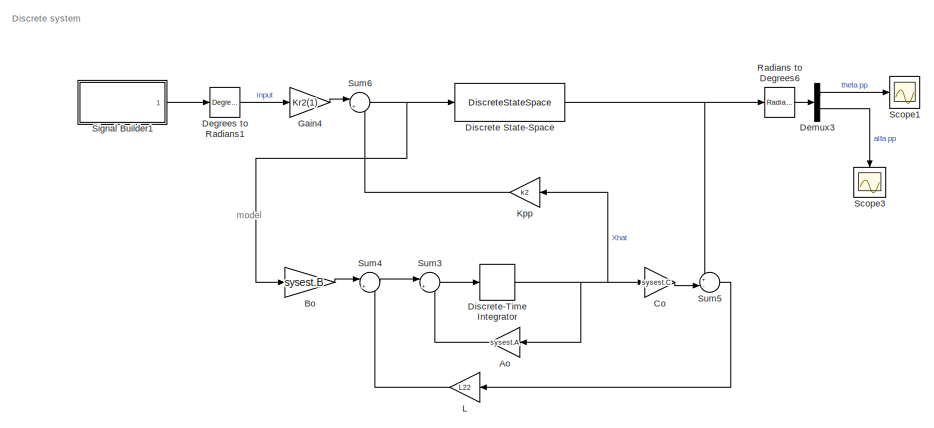
[diagram: root canvas - part 1/8, top center region]
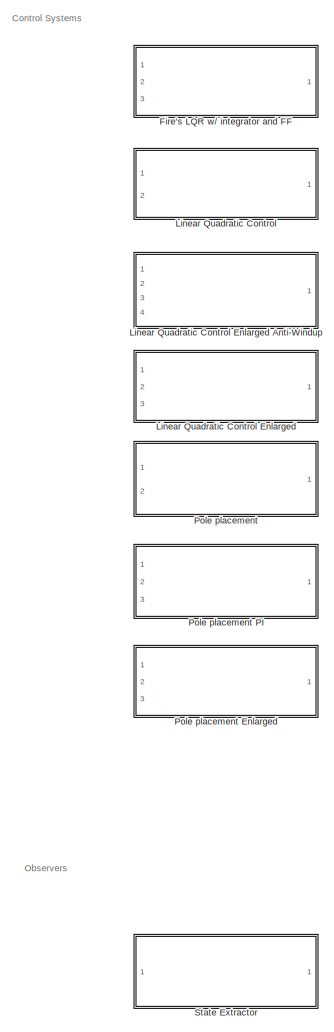
[diagram: root canvas - part 2/8, top left region]
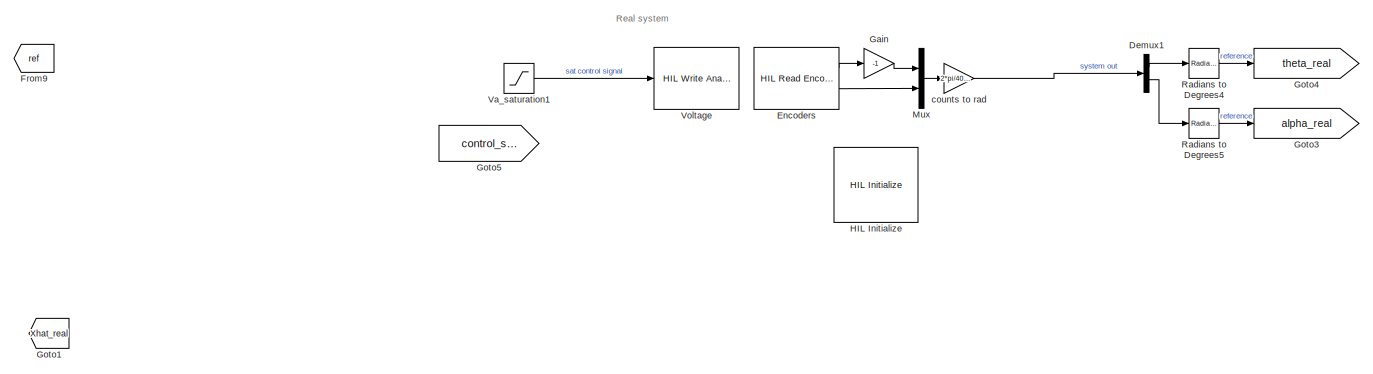
[diagram: root canvas - part 3/8, top right region]
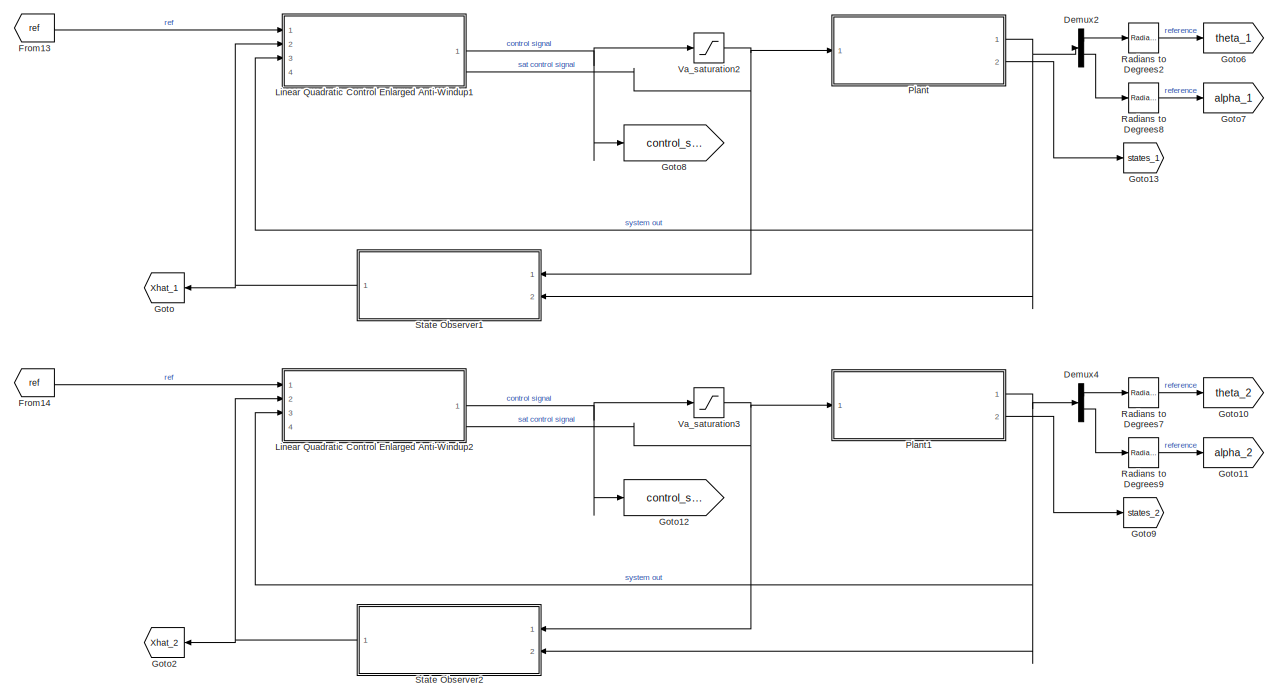
[diagram: root canvas - part 4/8, top center region]
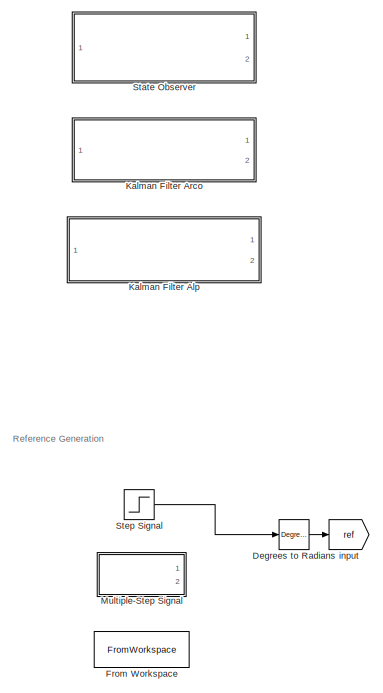
[diagram: root canvas - part 5/8, middle left region]
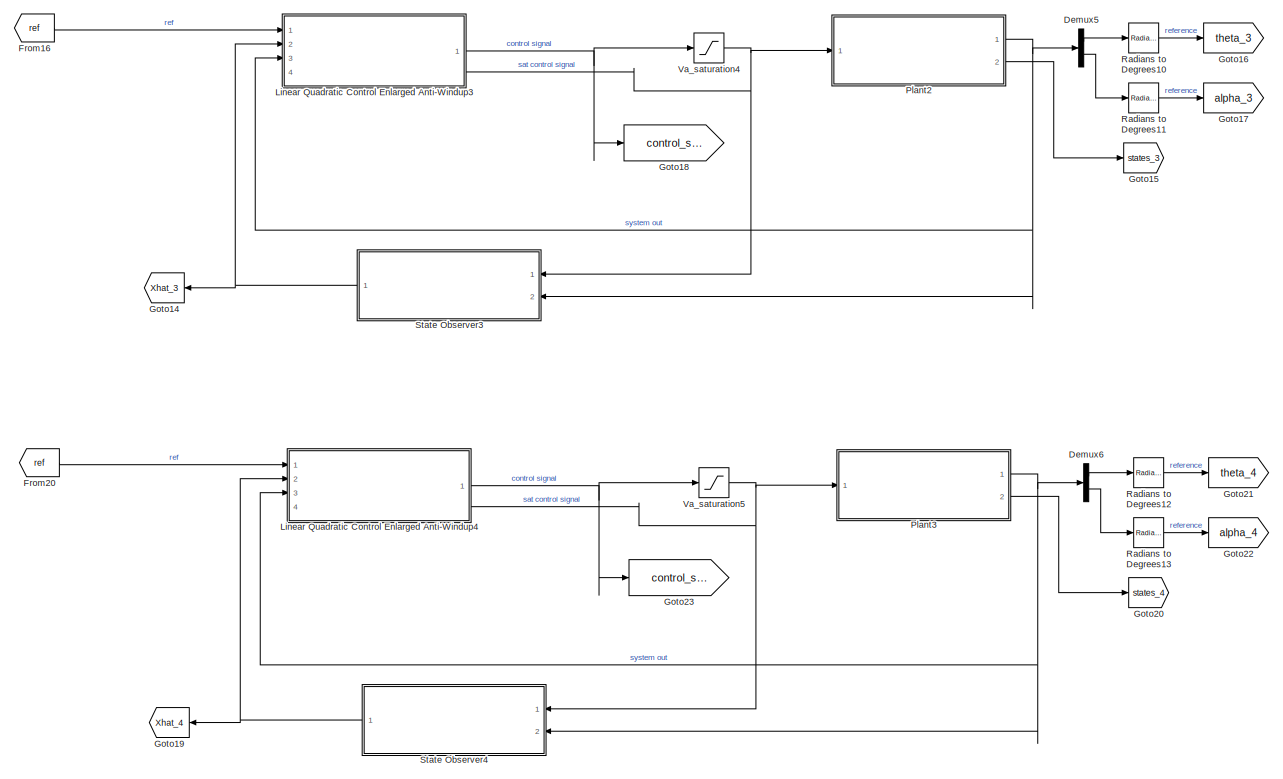
[diagram: root canvas - part 6/8, central region]
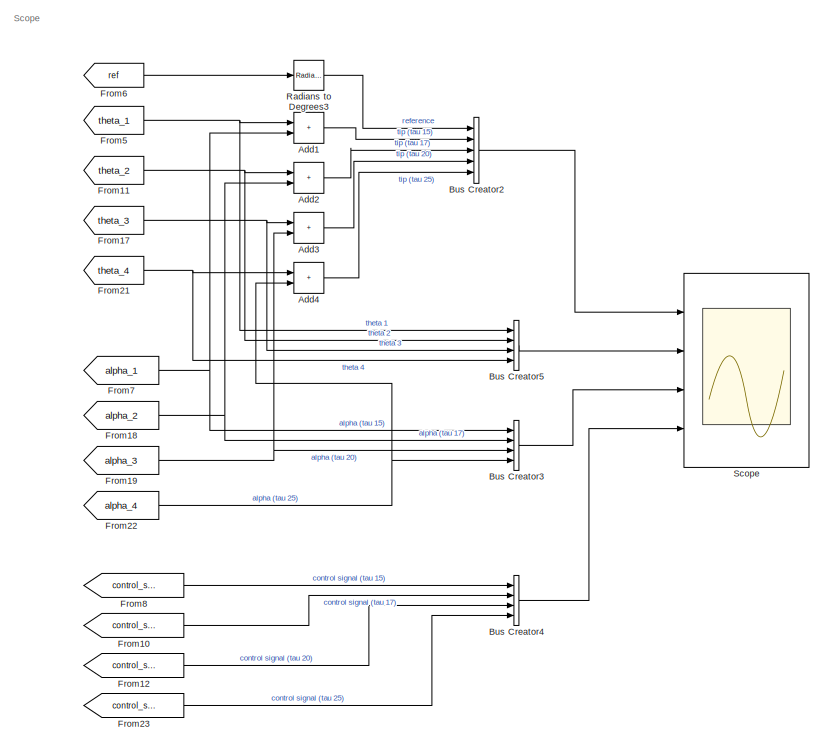
[diagram: root canvas - part 7/8, bottom left region]
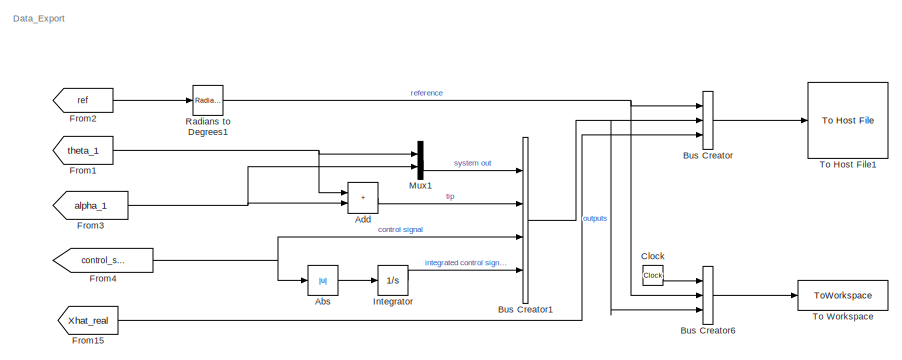
[diagram: root canvas - part 8/8, bottom center region]
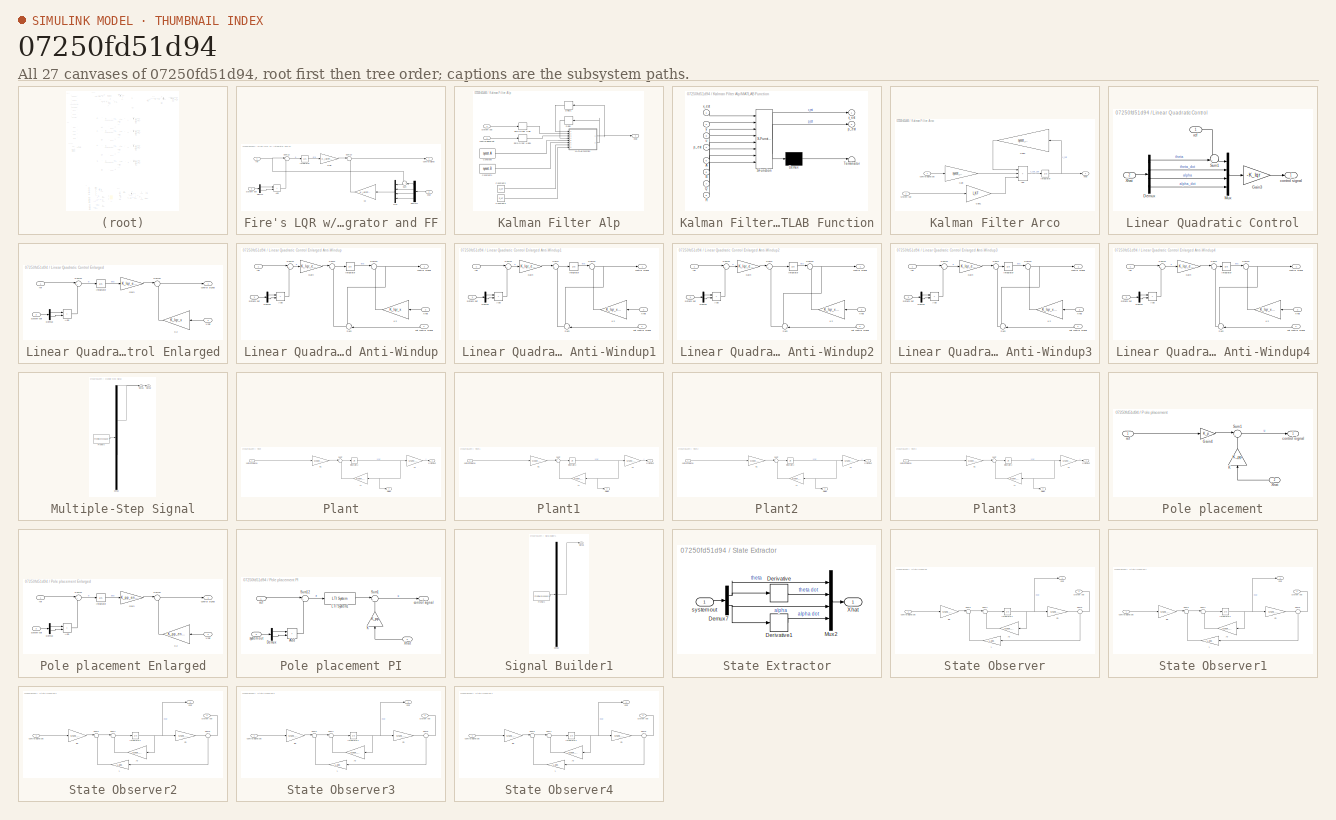
[diagram: thumbnail index - all 27 canvases of the model, root first then tree order]
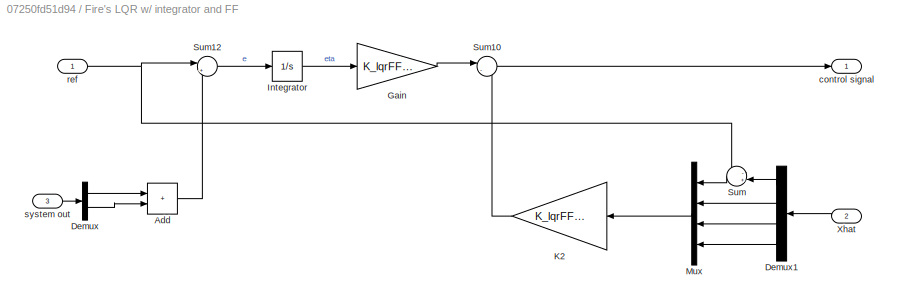
MODEL slx_07250fd51d94
KIND model
CONFIG AbsTol = auto
CONFIG EnableMultiTasking = on
CONFIG FixedStep = 0.002
CONFIG MaxStep = auto
CONFIG MinStep = auto
CONFIG PostLoadFcn = qc_set_target_type(getConfigSet(bdroot, 'QUARC Default Target Configuration'));
CONFIG RelTol = 1e-3
CONFIG SampleTimeConstraint = Unconstrained
CONFIG SolverName = FixedStepAuto
CONFIG StartTime = 0.0
CONFIG StopTime = inf
BLOCK [Abs] Abs
  SaturateOnIntegerOverflow = off
BLOCK [Sum] Add
  IconShape = rectangular
  Ports = [2, 1]
BLOCK [Sum] Add1
  IconShape = rectangular
  Ports = [2, 1]
BLOCK [Sum] Add2
  IconShape = rectangular
  Ports = [2, 1]
BLOCK [Sum] Add3
  IconShape = rectangular
  Ports = [2, 1]
BLOCK [Sum] Add4
  IconShape = rectangular
  Ports = [2, 1]
BLOCK [Gain] Ao
  Commented = on
  Gain = sysest.A
  Multiplication = Matrix(K*u)
  NameLocation = top
BLOCK [Gain] Bo
  Commented = on
  Gain = sysest.B
  Multiplication = Matrix(K*u)
BLOCK [BusCreator] Bus Creator
  DisplayOption = bar
  InheritFromInputs = on
  Inputs = 3
  Ports = [3, 1]
BLOCK [BusCreator] Bus Creator1
  DisplayOption = bar
  InheritFromInputs = on
  Inputs = 4
  Ports = [4, 1]
BLOCK [BusCreator] Bus Creator2
  DisplayOption = bar
  InheritFromInputs = on
  Inputs = 5
  Ports = [5, 1]
BLOCK [BusCreator] Bus Creator3
  DisplayOption = bar
  InheritFromInputs = on
  Inputs = 4
  Ports = [4, 1]
BLOCK [BusCreator] Bus Creator4
  DisplayOption = bar
  InheritFromInputs = on
  Inputs = 4
  Ports = [4, 1]
BLOCK [BusCreator] Bus Creator5
  DisplayOption = bar
  InheritFromInputs = on
  Inputs = 4
  Ports = [4, 1]
BLOCK [BusCreator] Bus Creator6
  DisplayOption = bar
  InheritFromInputs = on
  Inputs = 3
  Ports = [3, 1]
BLOCK [Clock] Clock
BLOCK [Gain] Co
  Commented = on
  Gain = sysest.C
  Multiplication = Matrix(K*u)
BLOCK [Reference] Degrees to Radians  REF=simulink_extras/Transformations/Degrees to
Radians
  Ports = [1, 1]
  SourceBlock = simulink_extras/Transformations/Degrees to\nRadians
  SourceProductBaseCode = SL
  SourceType = DegreesToRadians
BLOCK [Reference] Degrees to Radians1  REF=simulink_extras/Transformations/Degrees to
Radians
  Commented = on
  Ports = [1, 1]
  SourceBlock = simulink_extras/Transformations/Degrees to\nRadians
  SourceProductBaseCode = SL
  SourceType = DegreesToRadians
BLOCK [Demux] Demux1
  Commented = on
  Outputs = 2
  Ports = [1, 2]
BLOCK [Demux] Demux2
  Outputs = 2
  Ports = [1, 2]
BLOCK [Demux] Demux3
  Commented = on
  Outputs = 2
  Ports = [1, 2]
BLOCK [Demux] Demux4
  Outputs = 2
  Ports = [1, 2]
BLOCK [Demux] Demux5
  Outputs = 2
  Ports = [1, 2]
BLOCK [Demux] Demux6
  Outputs = 2
  Ports = [1, 2]
BLOCK [DiscreteStateSpace] Discrete State-Space
  A = sysest.A
  B = sysest.B
  C = sysest.C
  Commented = on
  D = sysest.D
  SampleTime = 0.002
BLOCK [DiscreteIntegrator] Discrete-Time Integrator
  Commented = on
  ICPrevOutput = DiscIntNeverNeededParam
  ICPrevScaledInput = DiscIntNeverNeededParam
  InitialConditionSetting = Auto
  Ports = [1, 1]
  SampleTime = 0.002
BLOCK [Reference] Encoders  REF=quarc_library/Data Acquisition/Generic/Timebases/HIL Read Encoder
Timebase
  AttributesFormatString = (%<object_name>)
  Commented = on
  Ports = [0, 2]
  SourceBlock = quarc_library/Data Acquisition/Generic/Timebases/HIL Read Encoder\nTimebase
  SourceType = HIL Read Encoder Timebase
  UserDataPersistent = on
BLOCK [SubSystem] Fire's LQR w// integrator and FF
  Commented = on
  Ports = [3, 1]
  RequestExecContextInheritance = off
BLOCK [Outport] Fire's LQR w// integrator and FF/ control signal
BLOCK [Sum] Fire's LQR w// integrator and FF/Add
  IconShape = rectangular
  Ports = [2, 1]
BLOCK [Demux] Fire's LQR w// integrator and FF/Demux
  Outputs = 2
  Ports = [1, 2]
BLOCK [Demux] Fire's LQR w// integrator and FF/Demux1
  NameLocation = top
  Ports = [1, 4]
BLOCK [Gain] Fire's LQR w// integrator and FF/Gain
  Gain = K_lqrFF_eta
BLOCK [Integrator] Fire's LQR w// integrator and FF/Integrator
  Ports = [1, 1]
BLOCK [Gain] Fire's LQR w// integrator and FF/K2
  Gain = K_lqrFF_x
  Multiplication = Matrix(K*u)
  NameLocation = top
BLOCK [Mux] Fire's LQR w// integrator and FF/Mux
  DisplayOption = bar
  NameLocation = top
  Ports = [4, 1]
BLOCK [Sum] Fire's LQR w// integrator and FF/Sum
  Inputs = -+|
  NameLocation = top
  Ports = [2, 1]
BLOCK [Sum] Fire's LQR w// integrator and FF/Sum10
  Inputs = |--
  Ports = [2, 1]
BLOCK [Sum] Fire's LQR w// integrator and FF/Sum12
  Inputs = |+-
  Ports = [2, 1]
BLOCK [Inport] Fire's LQR w// integrator and FF/Xhat
  Port = 2
BLOCK [Inport] Fire's LQR w// integrator and FF/ref
BLOCK [Inport] Fire's LQR w// integrator and FF/system out
  NameLocation = top
  Port = 3
BLOCK [FromWorkspace] From Workspace
  Commented = on
  VariableName = reference_simulink
BLOCK [From] From1
  GotoTag = theta_1
BLOCK [From] From10
  GotoTag = control_signal_2
BLOCK [From] From11
  GotoTag = theta_2
BLOCK [From] From12
  GotoTag = control_signal_3
BLOCK [From] From13
  GotoTag = ref
BLOCK [From] From14
  GotoTag = ref
BLOCK [From] From15
  GotoTag = Xhat_real
BLOCK [From] From16
  GotoTag = ref
BLOCK [From] From17
  GotoTag = theta_3
BLOCK [From] From18
  GotoTag = alpha_2
BLOCK [From] From19
  GotoTag = alpha_3
BLOCK [From] From2
  GotoTag = ref
BLOCK [From] From20
  GotoTag = ref
BLOCK [From] From21
  GotoTag = theta_4
BLOCK [From] From22
  GotoTag = alpha_4
BLOCK [From] From23
  GotoTag = control_signal_4
BLOCK [From] From3
  GotoTag = alpha_1
BLOCK [From] From4
  GotoTag = control_signal_1
BLOCK [From] From5
  GotoTag = theta_1
BLOCK [From] From6
  GotoTag = ref
BLOCK [From] From7
  GotoTag = alpha_1
BLOCK [From] From8
  GotoTag = control_signal_1
BLOCK [From] From9
  Commented = on
  GotoTag = ref
BLOCK [Gain] Gain
  Commented = on
  Gain = -1
BLOCK [Gain] Gain4
  Commented = on
  Gain = Kr2(1)
BLOCK [Goto] Goto
  GotoTag = Xhat_1
  NameLocation = top
BLOCK [Goto] Goto1
  Commented = on
  GotoTag = Xhat_real
  NameLocation = top
BLOCK [Goto] Goto10
  GotoTag = theta_2
BLOCK [Goto] Goto11
  GotoTag = alpha_2
BLOCK [Goto] Goto12
  GotoTag = control_signal_2
BLOCK [Goto] Goto13
  GotoTag = states_1
BLOCK [Goto] Goto14
  GotoTag = Xhat_3
  NameLocation = top
BLOCK [Goto] Goto15
  GotoTag = states_3
BLOCK [Goto] Goto16
  GotoTag = theta_3
BLOCK [Goto] Goto17
  GotoTag = alpha_3
BLOCK [Goto] Goto18
  GotoTag = control_signal_3
BLOCK [Goto] Goto19
  GotoTag = Xhat_4
  NameLocation = top
BLOCK [Goto] Goto2
  GotoTag = Xhat_2
  NameLocation = top
BLOCK [Goto] Goto20
  GotoTag = states_4
BLOCK [Goto] Goto21
  GotoTag = theta_4
BLOCK [Goto] Goto22
  GotoTag = alpha_4
BLOCK [Goto] Goto23
  GotoTag = control_signal_4
BLOCK [Goto] Goto3
  Commented = on
  GotoTag = alpha_real
BLOCK [Goto] Goto4
  Commented = on
  GotoTag = theta_real
BLOCK [Goto] Goto5
  Commented = on
  GotoTag = control_signal_real
BLOCK [Goto] Goto6
  GotoTag = theta_1
BLOCK [Goto] Goto7
  GotoTag = alpha_1
BLOCK [Goto] Goto8
  GotoTag = control_signal_1
BLOCK [Goto] Goto9
  GotoTag = states_2
BLOCK [Reference] HIL Initialize  REF=quarc_library/Data Acquisition/Generic/Configuration/HIL Initialize
  AttributesFormatString = %<object_name> (%<board_type>-%<board_number>)
  Commented = on
  Ports = []
  Priority = -99
  SourceBlock = quarc_library/Data Acquisition/Generic/Configuration/HIL Initialize
  SourceType = HIL Initialize
  UserDataPersistent = on
BLOCK [Integrator] Integrator
  Ports = [1, 1]
BLOCK [SubSystem] Kalman Filter Alp
  Commented = on
  Ports = [2, 1]
  RequestExecContextInheritance = off
BLOCK [Constant] Kalman Filter Alp/Constant
  Value = sysest.A
BLOCK [Constant] Kalman Filter Alp/Constant1
  Value = sysest.B
BLOCK [Constant] Kalman Filter Alp/Constant2
  Value = Q_KF
BLOCK [Constant] Kalman Filter Alp/Constant3
  Value = R_KF
BLOCK [Delay] Kalman Filter Alp/Delay
  DelayLength = 1
  InitialCondition = eye(4)
  InputPortMap = u0
  Ports = [1, 1]
BLOCK [Delay] Kalman Filter Alp/Delay1
  DelayLength = 1
  InitialCondition = [0;0;0;0]
  InputPortMap = u0
  Ports = [1, 1]
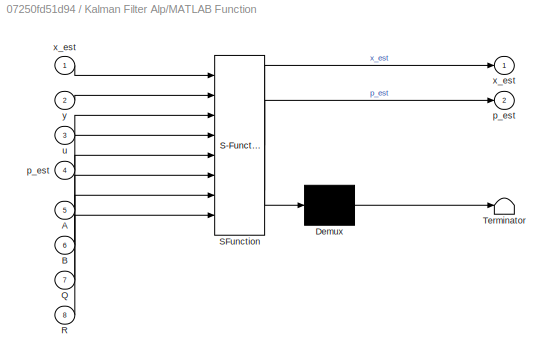
BLOCK [SubSystem] Kalman Filter Alp/MATLAB Function
  ErrorFcn = Stateflow.Translate.translate
  PermitHierarchicalResolution = ExplicitOnly
  Ports = [8, 2]
  RequestExecContextInheritance = off
  SFBlockType = MATLAB Function
  TreatAsAtomicUnit = on
BLOCK [Demux] Kalman Filter Alp/MATLAB Function/ Demux 
  Outputs = 1
  Ports = [1, 1]
BLOCK [S-Function] Kalman Filter Alp/MATLAB Function/ SFunction 
  EnableBusSupport = on
  FunctionName = sf_sfun
  PortCounts = [8 3]
  Ports = [8, 3]
  SFcnIsStateOwnerBlock = off
  SFunctionDeploymentMode = off
  Tag = Stateflow S-Function 2
BLOCK [Terminator] Kalman Filter Alp/MATLAB Function/ Terminator 
BLOCK [Inport] Kalman Filter Alp/MATLAB Function/A
  Port = 5
BLOCK [Inport] Kalman Filter Alp/MATLAB Function/B
  Port = 6
BLOCK [Inport] Kalman Filter Alp/MATLAB Function/Q
  Port = 7
BLOCK [Inport] Kalman Filter Alp/MATLAB Function/R
  Port = 8
BLOCK [Outport] Kalman Filter Alp/MATLAB Function/p_est
  Port = 2
BLOCK [Inport] Kalman Filter Alp/MATLAB Function/p_est 
  Port = 4
BLOCK [Inport] Kalman Filter Alp/MATLAB Function/u
  Port = 3
BLOCK [Outport] Kalman Filter Alp/MATLAB Function/x_est
BLOCK [Inport] Kalman Filter Alp/MATLAB Function/x_est 
BLOCK [Inport] Kalman Filter Alp/MATLAB Function/y
  Port = 2
BLOCK [Outport] Kalman Filter Alp/Xhat
  NameLocation = top
BLOCK [ZeroOrderHold] Kalman Filter Alp/Zero-Order Hold
  SampleTime = 0.002
BLOCK [ZeroOrderHold] Kalman Filter Alp/Zero-Order Hold1
  SampleTime = 0.002
BLOCK [Inport] Kalman Filter Alp/control signal sat
BLOCK [Inport] Kalman Filter Alp/system out
  Port = 2
BLOCK [SubSystem] Kalman Filter Arco
  Commented = on
  Ports = [2, 1]
  RequestExecContextInheritance = off
BLOCK [Sum] Kalman Filter Arco/Add
  IconShape = rectangular
  Inputs = +++
  Ports = [3, 1]
BLOCK [Gain] Kalman Filter Arco/Gain
  Gain = sysest_ct.B
  Multiplication = Matrix(K*u) (u vector)
BLOCK [Gain] Kalman Filter Arco/Gain1
  Gain = L_KF
  Multiplication = Matrix(K*u) (u vector)
BLOCK [Gain] Kalman Filter Arco/Gain2
  Gain = sysest_ct.A - L_KF * sysest_ct.C
  Multiplication = Matrix(K*u) (u vector)
BLOCK [Integrator] Kalman Filter Arco/Integrator
  Ports = [1, 1]
BLOCK [Outport] Kalman Filter Arco/Xhat
  PortDimensions = 4
BLOCK [Inport] Kalman Filter Arco/control signal sat
  PortDimensions = 1
BLOCK [Inport] Kalman Filter Arco/system out
  Port = 2
  PortDimensions = 2
BLOCK [Gain] Kpp
  Commented = on
  Gain = k2
  Multiplication = Matrix(K*u)
  NameLocation = top
BLOCK [Gain] L
  Commented = on
  Gain = L22
  Multiplication = Matrix(K*u)
  NameLocation = top
BLOCK [SubSystem] Linear Quadratic Control
  Commented = on
  Ports = [2, 1]
  RequestExecContextInheritance = off
BLOCK [SubSystem] Linear Quadratic Control Enlarged
  Commented = on
  Ports = [3, 1]
  RequestExecContextInheritance = off
BLOCK [SubSystem] Linear Quadratic Control Enlarged Anti-Windup
  Commented = on
  PortSchema = {"entries":[{"content":{"sides":[{"content":{"connectorIds":["In1","In2","In3"]},"type":"ConnectorPlacement.EquallySpacedRectSide","uuid":"15b51522-458a-4f7c-a290-9c80724aecba"},{"content":{"connectorIds":["Out1","In4"],"side":"RIGHT"},"type":"ConnectorPlacement.EquallySpacedRectSide","uuid":"ee497df3-c1d4-4daa-9165-c0ca341e658c"},{"content":{"connectorIds":[],"side":"TOP"},"type":"ConnectorPlacem...<+258ch>  <repeated x5 — deduplicated; at blocks: Linear Quadratic Control Enlarged Anti-Windup, Linear Quadratic Control Enlarged Anti-Windup1, Linear Quadratic Control Enlarged Anti-Windup2, Linear Quadratic Control Enlarged Anti-Windup3, Linear Quadratic Control Enlarged Anti-Windup4>
  Ports = [4, 1]
  RequestExecContextInheritance = off
BLOCK [Outport] Linear Quadratic Control Enlarged Anti-Windup/ control signal
BLOCK [Sum] Linear Quadratic Control Enlarged Anti-Windup/Add
  IconShape = rectangular
  Ports = [2, 1]
BLOCK [Demux] Linear Quadratic Control Enlarged Anti-Windup/Demux
  Outputs = 2
  Ports = [1, 2]
BLOCK [Gain] Linear Quadratic Control Enlarged Anti-Windup/Gain
  Gain = K_lqr_eta
BLOCK [Integrator] Linear Quadratic Control Enlarged Anti-Windup/Integrator
  Ports = [1, 1]
BLOCK [Gain] Linear Quadratic Control Enlarged Anti-Windup/K2
  Gain = K_lqr_x
  Multiplication = Matrix(K*u)
  NameLocation = top
BLOCK [Sum] Linear Quadratic Control Enlarged Anti-Windup/Sum
  Inputs = -+|
  NameLocation = top
  Ports = [2, 1]
BLOCK [Sum] Linear Quadratic Control Enlarged Anti-Windup/Sum10
  Inputs = |--
  Ports = [2, 1]
BLOCK [Sum] Linear Quadratic Control Enlarged Anti-Windup/Sum12
  Inputs = |+-
  Ports = [2, 1]
BLOCK [Sum] Linear Quadratic Control Enlarged Anti-Windup/Sum2
  Inputs = |+-
  Ports = [2, 1]
BLOCK [Inport] Linear Quadratic Control Enlarged Anti-Windup/Xhat
  Port = 2
BLOCK [Inport] Linear Quadratic Control Enlarged Anti-Windup/ref
BLOCK [Inport] Linear Quadratic Control Enlarged Anti-Windup/sat  control signal
  NameLocation = top
  Port = 4
BLOCK [Inport] Linear Quadratic Control Enlarged Anti-Windup/system out
  NameLocation = top
  Port = 3
BLOCK [SubSystem] Linear Quadratic Control Enlarged Anti-Windup1
  Ports = [4, 1]
  RequestExecContextInheritance = off
BLOCK [Outport] Linear Quadratic Control Enlarged Anti-Windup1/ control signal
BLOCK [Sum] Linear Quadratic Control Enlarged Anti-Windup1/Add
  IconShape = rectangular
  Ports = [2, 1]
BLOCK [Demux] Linear Quadratic Control Enlarged Anti-Windup1/Demux
  Outputs = 2
  Ports = [1, 2]
BLOCK [Gain] Linear Quadratic Control Enlarged Anti-Windup1/Gain
  Gain = K_lqr_eta_1
BLOCK [Integrator] Linear Quadratic Control Enlarged Anti-Windup1/Integrator
  Ports = [1, 1]
BLOCK [Gain] Linear Quadratic Control Enlarged Anti-Windup1/K2
  Gain = K_lqr_x_1
  Multiplication = Matrix(K*u)
  NameLocation = top
BLOCK [Sum] Linear Quadratic Control Enlarged Anti-Windup1/Sum
  Inputs = -+|
  NameLocation = top
  Ports = [2, 1]
BLOCK [Sum] Linear Quadratic Control Enlarged Anti-Windup1/Sum10
  Inputs = |--
  Ports = [2, 1]
BLOCK [Sum] Linear Quadratic Control Enlarged Anti-Windup1/Sum12
  Inputs = |+-
  Ports = [2, 1]
BLOCK [Sum] Linear Quadratic Control Enlarged Anti-Windup1/Sum2
  Inputs = |+-
  Ports = [2, 1]
BLOCK [Inport] Linear Quadratic Control Enlarged Anti-Windup1/Xhat
  Port = 2
BLOCK [Inport] Linear Quadratic Control Enlarged Anti-Windup1/ref
BLOCK [Inport] Linear Quadratic Control Enlarged Anti-Windup1/sat  control signal
  NameLocation = top
  Port = 4
BLOCK [Inport] Linear Quadratic Control Enlarged Anti-Windup1/system out
  NameLocation = top
  Port = 3
BLOCK [SubSystem] Linear Quadratic Control Enlarged Anti-Windup2
  Ports = [4, 1]
  RequestExecContextInheritance = off
BLOCK [Outport] Linear Quadratic Control Enlarged Anti-Windup2/ control signal
BLOCK [Sum] Linear Quadratic Control Enlarged Anti-Windup2/Add
  IconShape = rectangular
  Ports = [2, 1]
BLOCK [Demux] Linear Quadratic Control Enlarged Anti-Windup2/Demux
  Outputs = 2
  Ports = [1, 2]
BLOCK [Gain] Linear Quadratic Control Enlarged Anti-Windup2/Gain
  Gain = K_lqr_eta_2
BLOCK [Integrator] Linear Quadratic Control Enlarged Anti-Windup2/Integrator
  Ports = [1, 1]
BLOCK [Gain] Linear Quadratic Control Enlarged Anti-Windup2/K2
  Gain = K_lqr_x_2
  Multiplication = Matrix(K*u)
  NameLocation = top
BLOCK [Sum] Linear Quadratic Control Enlarged Anti-Windup2/Sum
  Inputs = -+|
  NameLocation = top
  Ports = [2, 1]
BLOCK [Sum] Linear Quadratic Control Enlarged Anti-Windup2/Sum10
  Inputs = |--
  Ports = [2, 1]
BLOCK [Sum] Linear Quadratic Control Enlarged Anti-Windup2/Sum12
  Inputs = |+-
  Ports = [2, 1]
BLOCK [Sum] Linear Quadratic Control Enlarged Anti-Windup2/Sum2
  Inputs = |+-
  Ports = [2, 1]
BLOCK [Inport] Linear Quadratic Control Enlarged Anti-Windup2/Xhat
  Port = 2
BLOCK [Inport] Linear Quadratic Control Enlarged Anti-Windup2/ref
BLOCK [Inport] Linear Quadratic Control Enlarged Anti-Windup2/sat  control signal
  NameLocation = top
  Port = 4
BLOCK [Inport] Linear Quadratic Control Enlarged Anti-Windup2/system out
  NameLocation = top
  Port = 3
BLOCK [SubSystem] Linear Quadratic Control Enlarged Anti-Windup3
  Ports = [4, 1]
  RequestExecContextInheritance = off
BLOCK [Outport] Linear Quadratic Control Enlarged Anti-Windup3/ control signal
BLOCK [Sum] Linear Quadratic Control Enlarged Anti-Windup3/Add
  IconShape = rectangular
  Ports = [2, 1]
BLOCK [Demux] Linear Quadratic Control Enlarged Anti-Windup3/Demux
  Outputs = 2
  Ports = [1, 2]
BLOCK [Gain] Linear Quadratic Control Enlarged Anti-Windup3/Gain
  Gain = K_lqr_eta_3
BLOCK [Integrator] Linear Quadratic Control Enlarged Anti-Windup3/Integrator
  Ports = [1, 1]
BLOCK [Gain] Linear Quadratic Control Enlarged Anti-Windup3/K2
  Gain = K_lqr_x_3
  Multiplication = Matrix(K*u)
  NameLocation = top
BLOCK [Sum] Linear Quadratic Control Enlarged Anti-Windup3/Sum
  Inputs = -+|
  NameLocation = top
  Ports = [2, 1]
BLOCK [Sum] Linear Quadratic Control Enlarged Anti-Windup3/Sum10
  Inputs = |--
  Ports = [2, 1]
BLOCK [Sum] Linear Quadratic Control Enlarged Anti-Windup3/Sum12
  Inputs = |+-
  Ports = [2, 1]
BLOCK [Sum] Linear Quadratic Control Enlarged Anti-Windup3/Sum2
  Inputs = |+-
  Ports = [2, 1]
BLOCK [Inport] Linear Quadratic Control Enlarged Anti-Windup3/Xhat
  Port = 2
BLOCK [Inport] Linear Quadratic Control Enlarged Anti-Windup3/ref
BLOCK [Inport] Linear Quadratic Control Enlarged Anti-Windup3/sat  control signal
  NameLocation = top
  Port = 4
BLOCK [Inport] Linear Quadratic Control Enlarged Anti-Windup3/system out
  NameLocation = top
  Port = 3
BLOCK [SubSystem] Linear Quadratic Control Enlarged Anti-Windup4
  Ports = [4, 1]
  RequestExecContextInheritance = off
BLOCK [Outport] Linear Quadratic Control Enlarged Anti-Windup4/ control signal
BLOCK [Sum] Linear Quadratic Control Enlarged Anti-Windup4/Add
  IconShape = rectangular
  Ports = [2, 1]
BLOCK [Demux] Linear Quadratic Control Enlarged Anti-Windup4/Demux
  Outputs = 2
  Ports = [1, 2]
BLOCK [Gain] Linear Quadratic Control Enlarged Anti-Windup4/Gain
  Gain = K_lqr_eta_4
BLOCK [Integrator] Linear Quadratic Control Enlarged Anti-Windup4/Integrator
  Ports = [1, 1]
BLOCK [Gain] Linear Quadratic Control Enlarged Anti-Windup4/K2
  Gain = K_lqr_x_4
  Multiplication = Matrix(K*u)
  NameLocation = top
BLOCK [Sum] Linear Quadratic Control Enlarged Anti-Windup4/Sum
  Inputs = -+|
  NameLocation = top
  Ports = [2, 1]
BLOCK [Sum] Linear Quadratic Control Enlarged Anti-Windup4/Sum10
  Inputs = |--
  Ports = [2, 1]
BLOCK [Sum] Linear Quadratic Control Enlarged Anti-Windup4/Sum12
  Inputs = |+-
  Ports = [2, 1]
BLOCK [Sum] Linear Quadratic Control Enlarged Anti-Windup4/Sum2
  Inputs = |+-
  Ports = [2, 1]
BLOCK [Inport] Linear Quadratic Control Enlarged Anti-Windup4/Xhat
  Port = 2
BLOCK [Inport] Linear Quadratic Control Enlarged Anti-Windup4/ref
BLOCK [Inport] Linear Quadratic Control Enlarged Anti-Windup4/sat  control signal
  NameLocation = top
  Port = 4
BLOCK [Inport] Linear Quadratic Control Enlarged Anti-Windup4/system out
  NameLocation = top
  Port = 3
BLOCK [Outport] Linear Quadratic Control Enlarged/ control signal
BLOCK [Sum] Linear Quadratic Control Enlarged/Add
  IconShape = rectangular
  Ports = [2, 1]
BLOCK [Demux] Linear Quadratic Control Enlarged/Demux
  Outputs = 2
  Ports = [1, 2]
BLOCK [Gain] Linear Quadratic Control Enlarged/Gain
  Gain = K_lqr_eta
BLOCK [Integrator] Linear Quadratic Control Enlarged/Integrator
  Ports = [1, 1]
BLOCK [Gain] Linear Quadratic Control Enlarged/K2
  Gain = K_lqr_x
  Multiplication = Matrix(K*u)
  NameLocation = top
BLOCK [Sum] Linear Quadratic Control Enlarged/Sum10
  Inputs = |--
  Ports = [2, 1]
BLOCK [Sum] Linear Quadratic Control Enlarged/Sum12
  Inputs = |+-
  Ports = [2, 1]
BLOCK [Inport] Linear Quadratic Control Enlarged/Xhat
  Port = 2
BLOCK [Inport] Linear Quadratic Control Enlarged/ref
BLOCK [Inport] Linear Quadratic Control Enlarged/system out
  NameLocation = top
  Port = 3
BLOCK [Outport] Linear Quadratic Control/ control signal
BLOCK [Demux] Linear Quadratic Control/Demux
  Ports = [1, 4]
BLOCK [Gain] Linear Quadratic Control/Gain3
  Gain = -K_lqr
  Multiplication = Matrix(K*u)
BLOCK [Mux] Linear Quadratic Control/Mux
  DisplayOption = bar
  Ports = [4, 1]
BLOCK [Sum] Linear Quadratic Control/Sum1
  Inputs = -+|
  Ports = [2, 1]
BLOCK [Inport] Linear Quadratic Control/Xhat
  Port = 2
BLOCK [Inport] Linear Quadratic Control/ref
BLOCK [SubSystem] Multiple-Step Signal
  ClipboardFcn = sigbuilder_block('clipboard');
  CloseFcn = sigbuilder_block('close');
  ContinueFcn = sigbuilder_block('continue');
  CopyFcn = sigbuilder_block('copy');
  DeleteFcn = sigbuilder_block('delete');
  LoadFcn = sigbuilder_block('load');
  MaskHideContents = on
  ModelCloseFcn = sigbuilder_block('modelClose');
  NameChangeFcn = sigbuilder_block('namechange');
  OpenFcn = sigbuilder_block('open',[6 30 1428 681.75 ]);
  PauseFcn = sigbuilder_block('pause');
  Ports = [0, 2]
  PreSaveFcn = sigbuilder_block('preSave');
  RequestExecContextInheritance = off
  StartFcn = sigbuilder_block('start');
  StopFcn = sigbuilder_block('stop');
  Tag = STV Subsys
BLOCK [Demux] Multiple-Step Signal/Demux
  DisplayOption = none
  Outputs = 2
  Ports = [1, 2]
  Tag = STV Demux
BLOCK [FromWorkspace] Multiple-Step Signal/FromWs
  Tag = STV FromWs
  VariableName = tuvar
BLOCK [Outport] Multiple-Step Signal/Signal 1
  Tag = STV Outport
BLOCK [Outport] Multiple-Step Signal/Signal 2
  Port = 2
  Tag = STV Outport
BLOCK [Mux] Mux
  Commented = on
  DisplayOption = bar
  Inputs = 2
  Ports = [2, 1]
BLOCK [Mux] Mux1
  DisplayOption = bar
  Inputs = 2
  Ports = [2, 1]
BLOCK [SubSystem] Plant
  Ports = [1, 2]
  RequestExecContextInheritance = off
BLOCK [Gain] Plant/A1
  Gain = sysest_ct.A
  Multiplication = Matrix(K*u)
  NameLocation = top
BLOCK [Gain] Plant/B1
  Gain = sysest_ct.B
  Multiplication = Matrix(K*u)
BLOCK [Gain] Plant/C1
  Gain = sysest_ct.C
  Multiplication = Matrix(K*u)
BLOCK [Integrator] Plant/Integrator2
  Ports = [1, 1]
BLOCK [Sum] Plant/Sum7
  Inputs = |++
  Ports = [2, 1]
BLOCK [Inport] Plant/sat control signal
BLOCK [Outport] Plant/states
  Port = 2
BLOCK [Outport] Plant/system out
BLOCK [SubSystem] Plant1
  Ports = [1, 2]
  RequestExecContextInheritance = off
BLOCK [Gain] Plant1/A1
  Gain = sysest_ct.A
  Multiplication = Matrix(K*u)
  NameLocation = top
BLOCK [Gain] Plant1/B1
  Gain = sysest_ct.B
  Multiplication = Matrix(K*u)
BLOCK [Gain] Plant1/C1
  Gain = sysest_ct.C
  Multiplication = Matrix(K*u)
BLOCK [Integrator] Plant1/Integrator2
  Ports = [1, 1]
BLOCK [Sum] Plant1/Sum7
  Inputs = |++
  Ports = [2, 1]
BLOCK [Inport] Plant1/sat control signal
BLOCK [Outport] Plant1/states
  Port = 2
BLOCK [Outport] Plant1/system out
BLOCK [SubSystem] Plant2
  Ports = [1, 2]
  RequestExecContextInheritance = off
BLOCK [Gain] Plant2/A1
  Gain = sysest_ct.A
  Multiplication = Matrix(K*u)
  NameLocation = top
BLOCK [Gain] Plant2/B1
  Gain = sysest_ct.B
  Multiplication = Matrix(K*u)
BLOCK [Gain] Plant2/C1
  Gain = sysest_ct.C
  Multiplication = Matrix(K*u)
BLOCK [Integrator] Plant2/Integrator2
  Ports = [1, 1]
BLOCK [Sum] Plant2/Sum7
  Inputs = |++
  Ports = [2, 1]
BLOCK [Inport] Plant2/sat control signal
BLOCK [Outport] Plant2/states
  Port = 2
BLOCK [Outport] Plant2/system out
BLOCK [SubSystem] Plant3
  Ports = [1, 2]
  RequestExecContextInheritance = off
BLOCK [Gain] Plant3/A1
  Gain = sysest_ct.A
  Multiplication = Matrix(K*u)
  NameLocation = top
BLOCK [Gain] Plant3/B1
  Gain = sysest_ct.B
  Multiplication = Matrix(K*u)
BLOCK [Gain] Plant3/C1
  Gain = sysest_ct.C
  Multiplication = Matrix(K*u)
BLOCK [Integrator] Plant3/Integrator2
  Ports = [1, 1]
BLOCK [Sum] Plant3/Sum7
  Inputs = |++
  Ports = [2, 1]
BLOCK [Inport] Plant3/sat control signal
BLOCK [Outport] Plant3/states
  Port = 2
BLOCK [Outport] Plant3/system out
BLOCK [SubSystem] Pole placement
  Commented = on
  Ports = [2, 1]
  RequestExecContextInheritance = off
BLOCK [SubSystem] Pole placement Enlarged
  Commented = on
  Ports = [3, 1]
  RequestExecContextInheritance = off
BLOCK [Outport] Pole placement Enlarged/ control signal
BLOCK [Sum] Pole placement Enlarged/Add
  IconShape = rectangular
  Ports = [2, 1]
BLOCK [Demux] Pole placement Enlarged/Demux
  Outputs = 2
  Ports = [1, 2]
BLOCK [Gain] Pole placement Enlarged/Gain
  Gain = K_pp_en_eta
BLOCK [Integrator] Pole placement Enlarged/Integrator
  Ports = [1, 1]
BLOCK [Gain] Pole placement Enlarged/K2
  Gain = K_pp_en_x
  Multiplication = Matrix(K*u)
  NameLocation = top
BLOCK [Sum] Pole placement Enlarged/Sum10
  Inputs = |--
  Ports = [2, 1]
BLOCK [Sum] Pole placement Enlarged/Sum12
  Inputs = |+-
  Ports = [2, 1]
BLOCK [Inport] Pole placement Enlarged/Xhat
  Port = 2
BLOCK [Inport] Pole placement Enlarged/ref
BLOCK [Inport] Pole placement Enlarged/system out
  NameLocation = top
  Port = 3
BLOCK [SubSystem] Pole placement PI
  Commented = on
  Ports = [3, 1]
  RequestExecContextInheritance = off
BLOCK [Outport] Pole placement PI/ control signal
BLOCK [Sum] Pole placement PI/Add
  IconShape = rectangular
  Ports = [2, 1]
BLOCK [Demux] Pole placement PI/Demux
  Outputs = 2
  Ports = [1, 2]
BLOCK [Gain] Pole placement PI/K
  Gain = K_pp
  Multiplication = Matrix(K*u)
  NameLocation = right
BLOCK [Reference] Pole placement PI/LTI System1  REF=cstblocks/LTI System
  Ports = [1, 1]
  SourceBlock = cstblocks/LTI System
  SourceProductBaseCode = CT
  SourceType = LTI Block
BLOCK [Sum] Pole placement PI/Sum1
  Inputs = |+-
  Ports = [2, 1]
BLOCK [Sum] Pole placement PI/Sum12
  Inputs = |+-
  Ports = [2, 1]
BLOCK [Inport] Pole placement PI/Xhat
  Port = 2
BLOCK [Inport] Pole placement PI/ref
BLOCK [Inport] Pole placement PI/system out
  NameLocation = top
  Port = 3
BLOCK [Outport] Pole placement/ control signal
BLOCK [Gain] Pole placement/Gain4
  Gain = K_p
  NameLocation = top
BLOCK [Gain] Pole placement/K
  Gain = K_pp
  Multiplication = Matrix(K*u)
  NameLocation = right
BLOCK [Sum] Pole placement/Sum1
  Inputs = |+-
  Ports = [2, 1]
BLOCK [Inport] Pole placement/Xhat
  Port = 2
BLOCK [Inport] Pole placement/ref
BLOCK [Reference] Radians to Degrees1  REF=simulink_extras/Transformations/Radians
to Degrees
  Ports = [1, 1]
  SourceBlock = simulink_extras/Transformations/Radians\nto Degrees
  SourceProductBaseCode = SL
  SourceType = RadiansToDegrees
BLOCK [Reference] Radians to Degrees10  REF=simulink_extras/Transformations/Radians
to Degrees
  Ports = [1, 1]
  SourceBlock = simulink_extras/Transformations/Radians\nto Degrees
  SourceProductBaseCode = SL
  SourceType = RadiansToDegrees
BLOCK [Reference] Radians to Degrees11  REF=simulink_extras/Transformations/Radians
to Degrees
  Ports = [1, 1]
  SourceBlock = simulink_extras/Transformations/Radians\nto Degrees
  SourceProductBaseCode = SL
  SourceType = RadiansToDegrees
BLOCK [Reference] Radians to Degrees12  REF=simulink_extras/Transformations/Radians
to Degrees
  Ports = [1, 1]
  SourceBlock = simulink_extras/Transformations/Radians\nto Degrees
  SourceProductBaseCode = SL
  SourceType = RadiansToDegrees
BLOCK [Reference] Radians to Degrees13  REF=simulink_extras/Transformations/Radians
to Degrees
  Ports = [1, 1]
  SourceBlock = simulink_extras/Transformations/Radians\nto Degrees
  SourceProductBaseCode = SL
  SourceType = RadiansToDegrees
BLOCK [Reference] Radians to Degrees2  REF=simulink_extras/Transformations/Radians
to Degrees
  Ports = [1, 1]
  SourceBlock = simulink_extras/Transformations/Radians\nto Degrees
  SourceProductBaseCode = SL
  SourceType = RadiansToDegrees
BLOCK [Reference] Radians to Degrees3  REF=simulink_extras/Transformations/Radians
to Degrees
  Ports = [1, 1]
  SourceBlock = simulink_extras/Transformations/Radians\nto Degrees
  SourceProductBaseCode = SL
  SourceType = RadiansToDegrees
BLOCK [Reference] Radians to Degrees4  REF=simulink_extras/Transformations/Radians
to Degrees
  Commented = on
  Ports = [1, 1]
  SourceBlock = simulink_extras/Transformations/Radians\nto Degrees
  SourceProductBaseCode = SL
  SourceType = RadiansToDegrees
BLOCK [Reference] Radians to Degrees5  REF=simulink_extras/Transformations/Radians
to Degrees
  Commented = on
  Ports = [1, 1]
  SourceBlock = simulink_extras/Transformations/Radians\nto Degrees
  SourceProductBaseCode = SL
  SourceType = RadiansToDegrees
BLOCK [Reference] Radians to Degrees6  REF=simulink_extras/Transformations/Radians
to Degrees
  Commented = on
  Ports = [1, 1]
  SourceBlock = simulink_extras/Transformations/Radians\nto Degrees
  SourceProductBaseCode = SL
  SourceType = RadiansToDegrees
BLOCK [Reference] Radians to Degrees7  REF=simulink_extras/Transformations/Radians
to Degrees
  Ports = [1, 1]
  SourceBlock = simulink_extras/Transformations/Radians\nto Degrees
  SourceProductBaseCode = SL
  SourceType = RadiansToDegrees
BLOCK [Reference] Radians to Degrees8  REF=simulink_extras/Transformations/Radians
to Degrees
  Ports = [1, 1]
  SourceBlock = simulink_extras/Transformations/Radians\nto Degrees
  SourceProductBaseCode = SL
  SourceType = RadiansToDegrees
BLOCK [Reference] Radians to Degrees9  REF=simulink_extras/Transformations/Radians
to Degrees
  Ports = [1, 1]
  SourceBlock = simulink_extras/Transformations/Radians\nto Degrees
  SourceProductBaseCode = SL
  SourceType = RadiansToDegrees
BLOCK [Scope] Scope
  Floating = off
  NumInputPorts = 4
  Ports = [4]
  ScopeSpecificationString = Simulink.scopes.TimeScopeBlockCfg('CurrentConfiguration', extmgr.ConfigurationSet(extmgr.Configuration('Core','General UI',true,'FigureColor',[1 1 1]),extmgr.Configuration('Core','Source UI',true),extmgr.Configuration('Sources','WiredSimulink',true),extmgr.Configuration('Visuals','Time Domain',true,'SerializedDisplays',{struct('MinYLimReal','-5.62502','MaxYLimReal','50.625','YLabelReal','Tip Posit...<+5508ch>
BLOCK [Scope] Scope1
  Commented = on
  Floating = off
  NumInputPorts = 1
  Ports = [1]
  ScopeSpecificationString = Simulink.scopes.TimeScopeBlockCfg('CurrentConfiguration', extmgr.ConfigurationSet(extmgr.Configuration('Core','General UI',true),extmgr.Configuration('Core','Source UI',true),extmgr.Configuration('Sources','WiredSimulink',true,'DataLoggingVariableName','ScopeData1'),extmgr.Configuration('Visuals','Time Domain',true,'SerializedDisplays',{struct('MinYLimReal','-7987.43396','MaxYLimReal','71886.90564...<+1393ch>
BLOCK [Scope] Scope3
  Commented = on
  Floating = off
  NameLocation = left
  NumInputPorts = 1
  Ports = [1]
  ScopeSpecificationString = Simulink.scopes.TimeScopeBlockCfg('CurrentConfiguration', extmgr.ConfigurationSet(extmgr.Configuration('Core','General UI',true),extmgr.Configuration('Core','Source UI',true),extmgr.Configuration('Sources','WiredSimulink',true,'DataLoggingVariableName','ScopeData2'),extmgr.Configuration('Visuals','Time Domain',true,'SerializedDisplays',{struct('MinYLimReal','-5.40954','MaxYLimReal','28.86792','YLa...<+1370ch>
BLOCK [SubSystem] Signal Builder1
  ClipboardFcn = sigbuilder_block('clipboard');
  CloseFcn = sigbuilder_block('close');
  Commented = on
  ContinueFcn = sigbuilder_block('continue');
  CopyFcn = sigbuilder_block('copy');
  DeleteFcn = sigbuilder_block('delete');
  LoadFcn = sigbuilder_block('load');
  MaskHideContents = on
  ModelCloseFcn = sigbuilder_block('modelClose');
  NameChangeFcn = sigbuilder_block('namechange');
  OpenFcn = sigbuilder_block('open',[437.6 199.2 550.4 400 ]);
  PauseFcn = sigbuilder_block('pause');
  Ports = [0, 1]
  PreSaveFcn = sigbuilder_block('preSave');
  RequestExecContextInheritance = off
  StartFcn = sigbuilder_block('start');
  StopFcn = sigbuilder_block('stop');
  Tag = STV Subsys
BLOCK [Demux] Signal Builder1/Demux
  DisplayOption = none
  Outputs = 1
  Ports = [1, 1]
  Tag = STV Demux
BLOCK [FromWorkspace] Signal Builder1/FromWs
  Tag = STV FromWs
  VariableName = tuvar
BLOCK [Outport] Signal Builder1/Signal 1
  Tag = STV Outport
BLOCK [SubSystem] State Extractor
  Commented = on
  Ports = [1, 1]
  RequestExecContextInheritance = off
BLOCK [Demux] State Extractor/Demux7
  Outputs = 2
  Ports = [1, 2]
BLOCK [Derivative] State Extractor/Derivative
BLOCK [Derivative] State Extractor/Derivative1
BLOCK [Mux] State Extractor/Mux2
  DisplayOption = bar
  Ports = [4, 1]
BLOCK [Outport] State Extractor/Xhat
BLOCK [Inport] State Extractor/system out
BLOCK [SubSystem] State Observer
  Commented = on
  Ports = [2, 1]
  RequestExecContextInheritance = off
BLOCK [Gain] State Observer/Ao
  Gain = sysest_ct.A
  Multiplication = Matrix(K*u)
  NameLocation = top
BLOCK [Gain] State Observer/Bo
  Gain = sysest_ct.B
  Multiplication = Matrix(K*u)
BLOCK [Gain] State Observer/Co
  Gain = sysest_ct.C
  Multiplication = Matrix(K*u)
BLOCK [Integrator] State Observer/Integrator1
  Ports = [1, 1]
BLOCK [Gain] State Observer/L
  Gain = L_obs
  Multiplication = Matrix(K*u)
  NameLocation = top
BLOCK [Sum] State Observer/Sum4
  Inputs = |++
  Ports = [2, 1]
BLOCK [Sum] State Observer/Sum5
  Inputs = |++
  Ports = [2, 1]
BLOCK [Sum] State Observer/Sum6
  Inputs = -+
  NameLocation = left
  Ports = [2, 1]
BLOCK [Outport] State Observer/Xhat
BLOCK [Inport] State Observer/control signal sat
BLOCK [Inport] State Observer/system out
  Port = 2
BLOCK [SubSystem] State Observer1
  Ports = [2, 1]
  RequestExecContextInheritance = off
BLOCK [Gain] State Observer1/Ao
  Gain = sysest_ct.A
  Multiplication = Matrix(K*u)
  NameLocation = top
BLOCK [Gain] State Observer1/Bo
  Gain = sysest_ct.B
  Multiplication = Matrix(K*u)
BLOCK [Gain] State Observer1/Co
  Gain = sysest_ct.C
  Multiplication = Matrix(K*u)
BLOCK [Integrator] State Observer1/Integrator1
  Ports = [1, 1]
BLOCK [Gain] State Observer1/L
  Gain = L_obs
  Multiplication = Matrix(K*u)
  NameLocation = top
BLOCK [Sum] State Observer1/Sum4
  Inputs = |++
  Ports = [2, 1]
BLOCK [Sum] State Observer1/Sum5
  Inputs = |++
  Ports = [2, 1]
BLOCK [Sum] State Observer1/Sum6
  Inputs = -+
  NameLocation = left
  Ports = [2, 1]
BLOCK [Outport] State Observer1/Xhat
BLOCK [Inport] State Observer1/control signal sat
BLOCK [Inport] State Observer1/system out
  Port = 2
BLOCK [SubSystem] State Observer2
  Ports = [2, 1]
  RequestExecContextInheritance = off
BLOCK [Gain] State Observer2/Ao
  Gain = sysest_ct.A
  Multiplication = Matrix(K*u)
  NameLocation = top
BLOCK [Gain] State Observer2/Bo
  Gain = sysest_ct.B
  Multiplication = Matrix(K*u)
BLOCK [Gain] State Observer2/Co
  Gain = sysest_ct.C
  Multiplication = Matrix(K*u)
BLOCK [Integrator] State Observer2/Integrator1
  Ports = [1, 1]
BLOCK [Gain] State Observer2/L
  Gain = L_obs
  Multiplication = Matrix(K*u)
  NameLocation = top
BLOCK [Sum] State Observer2/Sum4
  Inputs = |++
  Ports = [2, 1]
BLOCK [Sum] State Observer2/Sum5
  Inputs = |++
  Ports = [2, 1]
BLOCK [Sum] State Observer2/Sum6
  Inputs = -+
  NameLocation = left
  Ports = [2, 1]
BLOCK [Outport] State Observer2/Xhat
BLOCK [Inport] State Observer2/control signal sat
BLOCK [Inport] State Observer2/system out
  Port = 2
BLOCK [SubSystem] State Observer3
  Ports = [2, 1]
  RequestExecContextInheritance = off
BLOCK [Gain] State Observer3/Ao
  Gain = sysest_ct.A
  Multiplication = Matrix(K*u)
  NameLocation = top
BLOCK [Gain] State Observer3/Bo
  Gain = sysest_ct.B
  Multiplication = Matrix(K*u)
BLOCK [Gain] State Observer3/Co
  Gain = sysest_ct.C
  Multiplication = Matrix(K*u)
BLOCK [Integrator] State Observer3/Integrator1
  Ports = [1, 1]
BLOCK [Gain] State Observer3/L
  Gain = L_obs
  Multiplication = Matrix(K*u)
  NameLocation = top
BLOCK [Sum] State Observer3/Sum4
  Inputs = |++
  Ports = [2, 1]
BLOCK [Sum] State Observer3/Sum5
  Inputs = |++
  Ports = [2, 1]
BLOCK [Sum] State Observer3/Sum6
  Inputs = -+
  NameLocation = left
  Ports = [2, 1]
BLOCK [Outport] State Observer3/Xhat
BLOCK [Inport] State Observer3/control signal sat
BLOCK [Inport] State Observer3/system out
  Port = 2
BLOCK [SubSystem] State Observer4
  Ports = [2, 1]
  RequestExecContextInheritance = off
BLOCK [Gain] State Observer4/Ao
  Gain = sysest_ct.A
  Multiplication = Matrix(K*u)
  NameLocation = top
BLOCK [Gain] State Observer4/Bo
  Gain = sysest_ct.B
  Multiplication = Matrix(K*u)
BLOCK [Gain] State Observer4/Co
  Gain = sysest_ct.C
  Multiplication = Matrix(K*u)
BLOCK [Integrator] State Observer4/Integrator1
  Ports = [1, 1]
BLOCK [Gain] State Observer4/L
  Gain = L_obs
  Multiplication = Matrix(K*u)
  NameLocation = top
BLOCK [Sum] State Observer4/Sum4
  Inputs = |++
  Ports = [2, 1]
BLOCK [Sum] State Observer4/Sum5
  Inputs = |++
  Ports = [2, 1]
BLOCK [Sum] State Observer4/Sum6
  Inputs = -+
  NameLocation = left
  Ports = [2, 1]
BLOCK [Outport] State Observer4/Xhat
BLOCK [Inport] State Observer4/control signal sat
BLOCK [Inport] State Observer4/system out
  Port = 2
BLOCK [Step] Step Signal
  After = 45
  SampleTime = 0
  Time = 0.2
BLOCK [Sum] Sum3
  Commented = on
  Inputs = |++
  Ports = [2, 1]
BLOCK [Sum] Sum4
  Commented = on
  Inputs = |++
  Ports = [2, 1]
BLOCK [Sum] Sum5
  Commented = on
  Inputs = +-|
  Ports = [2, 1]
BLOCK [Sum] Sum6
  Commented = on
  Inputs = |+-
  Ports = [2, 1]
BLOCK [Reference] To Host File1  REF=quarc_library/Sinks/To Host/To Host File
  AttributesFormatString = %<final_file_name>
  Commented = on
  Ports = [1]
  SourceBlock = quarc_library/Sinks/To Host/To Host File
  SourceType = To Host File
BLOCK [ToWorkspace] To Workspace
  FixptAsFi = on
  MaxDataPoints = inf
  Ports = [1]
  SampleTime = -1
  VariableName = data
BLOCK [Saturate] Va_saturation1
  Commented = on
  LowerLimit = -v_a_max
  UpperLimit = v_a_max
BLOCK [Saturate] Va_saturation2
  LowerLimit = -v_a_max
  UpperLimit = v_a_max
BLOCK [Saturate] Va_saturation3
  LowerLimit = -v_a_max
  UpperLimit = v_a_max
BLOCK [Saturate] Va_saturation4
  LowerLimit = -v_a_max
  UpperLimit = v_a_max
BLOCK [Saturate] Va_saturation5
  LowerLimit = -v_a_max
  UpperLimit = v_a_max
BLOCK [Reference] Voltage  REF=quarc_library/Data Acquisition/Generic/Immediate I//O/HIL Write Analog
  AttributesFormatString = (%<object_name>)
  Commented = on
  Ports = [1]
  SourceBlock = quarc_library/Data Acquisition/Generic/Immediate I//O/HIL Write Analog
  SourceType = HIL Write Analog
  UserDataPersistent = on
BLOCK [Gain] counts to rad
  Commented = on
  Gain = 2*pi/4096
BLOCK [Goto] input
  GotoTag = ref
ANNOTATION (root): Control Systems
ANNOTATION (root): Data_Export
ANNOTATION (root): Discrete system
ANNOTATION (root): Observers
ANNOTATION (root): Real system
ANNOTATION (root): Reference Generation
ANNOTATION (root): Scope
ANNOTATION (root): model
LINE Abs:1 -> Integrator:1
LINE Add1:1 -> Bus Creator2:2
LINE Add2:1 -> Bus Creator2:3
LINE Add3:1 -> Bus Creator2:4
LINE Add4:1 -> Bus Creator2:5
LINE Add:1 -> Bus Creator1:2
LINE Ao:1 -> Sum3:2
LINE Bo:1 -> Sum4:1
NET Bus Creator1:1 -> Bus Creator6:3, Bus Creator:2
LINE Bus Creator2:1 -> Scope:1
LINE Bus Creator3:1 -> Scope:3
LINE Bus Creator4:1 -> Scope:4
LINE Bus Creator5:1 -> Scope:2
LINE Bus Creator6:1 -> To Workspace:1
LINE Bus Creator:1 -> To Host File1:1
LINE Clock:1 -> Bus Creator6:1
LINE Co:1 -> Sum5:2
LINE Degrees to Radians1:1 -> Gain4:1
LINE Degrees to Radians:1 -> input:1
LINE Demux1:1 -> Radians to Degrees4:1
LINE Demux1:2 -> Radians to Degrees5:1
LINE Demux2:1 -> Radians to Degrees2:1
LINE Demux2:2 -> Radians to Degrees8:1
LINE Demux3:1 -> Scope1:1
LINE Demux3:2 -> Scope3:1
LINE Demux4:1 -> Radians to Degrees7:1
LINE Demux4:2 -> Radians to Degrees9:1
LINE Demux5:1 -> Radians to Degrees10:1
LINE Demux5:2 -> Radians to Degrees11:1
LINE Demux6:1 -> Radians to Degrees12:1
LINE Demux6:2 -> Radians to Degrees13:1
NET Discrete State-Space:1 -> Radians to Degrees6:1, Sum5:1
NET Discrete-Time Integrator:1 -> Ao:1, Co:1, Kpp:1
LINE Encoders:1 -> Gain:1
LINE Encoders:2 -> Mux:2
LINE Fire's LQR w// integrator and FF/Add:1 -> Fire's LQR w// integrator and FF/Sum12:2
LINE Fire's LQR w// integrator and FF/Demux1:1 -> Fire's LQR w// integrator and FF/Sum:2
LINE Fire's LQR w// integrator and FF/Demux1:2 -> Fire's LQR w// integrator and FF/Mux:2
LINE Fire's LQR w// integrator and FF/Demux1:3 -> Fire's LQR w// integrator and FF/Mux:3
LINE Fire's LQR w// integrator and FF/Demux1:4 -> Fire's LQR w// integrator and FF/Mux:4
LINE Fire's LQR w// integrator and FF/Demux:1 -> Fire's LQR w// integrator and FF/Add:1
LINE Fire's LQR w// integrator and FF/Demux:2 -> Fire's LQR w// integrator and FF/Add:2
LINE Fire's LQR w// integrator and FF/Gain:1 -> Fire's LQR w// integrator and FF/Sum10:1
LINE Fire's LQR w// integrator and FF/Integrator:1 -> Fire's LQR w// integrator and FF/Gain:1
LINE Fire's LQR w// integrator and FF/K2:1 -> Fire's LQR w// integrator and FF/Sum10:2
LINE Fire's LQR w// integrator and FF/Mux:1 -> Fire's LQR w// integrator and FF/K2:1
LINE Fire's LQR w// integrator and FF/Sum10:1 -> Fire's LQR w// integrator and FF/ control signal:1
LINE Fire's LQR w// integrator and FF/Sum12:1 -> Fire's LQR w// integrator and FF/Integrator:1
LINE Fire's LQR w// integrator and FF/Sum:1 -> Fire's LQR w// integrator and FF/Mux:1
LINE Fire's LQR w// integrator and FF/Xhat:1 -> Fire's LQR w// integrator and FF/Demux1:1
NET Fire's LQR w// integrator and FF/ref:1 -> Fire's LQR w// integrator and FF/Sum12:1, Fire's LQR w// integrator and FF/Sum:1
LINE Fire's LQR w// integrator and FF/system out:1 -> Fire's LQR w// integrator and FF/Demux:1
LINE From10:1 -> Bus Creator4:2
NET From11:1 -> Add2:1, Bus Creator5:2
LINE From12:1 -> Bus Creator4:3
LINE From13:1 -> Linear Quadratic Control Enlarged Anti-Windup1:1
LINE From14:1 -> Linear Quadratic Control Enlarged Anti-Windup2:1
LINE From15:1 -> Bus Creator:3
LINE From16:1 -> Linear Quadratic Control Enlarged Anti-Windup3:1
NET From17:1 -> Add3:1, Bus Creator5:3
NET From18:1 -> Add2:2, Bus Creator3:2
NET From19:1 -> Add3:2, Bus Creator3:3
NET From1:1 -> Add:1, Mux1:1
LINE From20:1 -> Linear Quadratic Control Enlarged Anti-Windup4:1
NET From21:1 -> Add4:1, Bus Creator5:4
NET From22:1 -> Add4:2, Bus Creator3:4
LINE From23:1 -> Bus Creator4:4
LINE From2:1 -> Radians to Degrees1:1
NET From3:1 -> Add:2, Mux1:2
NET From4:1 -> Abs:1, Bus Creator1:3
NET From5:1 -> Add1:1, Bus Creator5:1
LINE From6:1 -> Radians to Degrees3:1
NET From7:1 -> Add1:2, Bus Creator3:1
LINE From8:1 -> Bus Creator4:1
LINE Gain4:1 -> Sum6:1
LINE Gain:1 -> Mux:1
LINE Integrator:1 -> Bus Creator1:4
LINE Kalman Filter Alp/Constant1:1 -> Kalman Filter Alp/MATLAB Function:6
LINE Kalman Filter Alp/Constant2:1 -> Kalman Filter Alp/MATLAB Function:7
LINE Kalman Filter Alp/Constant3:1 -> Kalman Filter Alp/MATLAB Function:8
LINE Kalman Filter Alp/Constant:1 -> Kalman Filter Alp/MATLAB Function:5
LINE Kalman Filter Alp/Delay1:1 -> Kalman Filter Alp/MATLAB Function:1
LINE Kalman Filter Alp/Delay:1 -> Kalman Filter Alp/MATLAB Function:4
NET Kalman Filter Alp/MATLAB Function:1 -> Kalman Filter Alp/Delay1:1, Kalman Filter Alp/Xhat:1
LINE Kalman Filter Alp/MATLAB Function:2 -> Kalman Filter Alp/Delay:1
LINE Kalman Filter Alp/Zero-Order Hold1:1 -> Kalman Filter Alp/MATLAB Function:3
LINE Kalman Filter Alp/Zero-Order Hold:1 -> Kalman Filter Alp/MATLAB Function:2
LINE Kalman Filter Alp/control signal sat:1 -> Kalman Filter Alp/Zero-Order Hold1:1
LINE Kalman Filter Alp/system out:1 -> Kalman Filter Alp/Zero-Order Hold:1
LINE Kalman Filter Arco/Add:1 -> Kalman Filter Arco/Integrator:1
LINE Kalman Filter Arco/Gain1:1 -> Kalman Filter Arco/Add:3
LINE Kalman Filter Arco/Gain2:1 -> Kalman Filter Arco/Add:1
LINE Kalman Filter Arco/Gain:1 -> Kalman Filter Arco/Add:2
NET Kalman Filter Arco/Integrator:1 -> Kalman Filter Arco/Gain2:1, Kalman Filter Arco/Xhat:1
LINE Kalman Filter Arco/control signal sat:1 -> Kalman Filter Arco/Gain:1
LINE Kalman Filter Arco/system out:1 -> Kalman Filter Arco/Gain1:1
LINE Kpp:1 -> Sum6:2
LINE L:1 -> Sum4:2
LINE Linear Quadratic Control Enlarged Anti-Windup/Add:1 -> Linear Quadratic Control Enlarged Anti-Windup/Sum12:2
LINE Linear Quadratic Control Enlarged Anti-Windup/Demux:1 -> Linear Quadratic Control Enlarged Anti-Windup/Add:1
LINE Linear Quadratic Control Enlarged Anti-Windup/Demux:2 -> Linear Quadratic Control Enlarged Anti-Windup/Add:2
LINE Linear Quadratic Control Enlarged Anti-Windup/Gain:1 -> Linear Quadratic Control Enlarged Anti-Windup/Sum2:1
LINE Linear Quadratic Control Enlarged Anti-Windup/Integrator:1 -> Linear Quadratic Control Enlarged Anti-Windup/Sum10:1
LINE Linear Quadratic Control Enlarged Anti-Windup/K2:1 -> Linear Quadratic Control Enlarged Anti-Windup/Sum10:2
NET Linear Quadratic Control Enlarged Anti-Windup/Sum10:1 -> Linear Quadratic Control Enlarged Anti-Windup/ control signal:1, Linear Quadratic Control Enlarged Anti-Windup/Sum:1
LINE Linear Quadratic Control Enlarged Anti-Windup/Sum12:1 -> Linear Quadratic Control Enlarged Anti-Windup/Gain:1
LINE Linear Quadratic Control Enlarged Anti-Windup/Sum2:1 -> Linear Quadratic Control Enlarged Anti-Windup/Integrator:1
LINE Linear Quadratic Control Enlarged Anti-Windup/Sum:1 -> Linear Quadratic Control Enlarged Anti-Windup/Sum2:2
LINE Linear Quadratic Control Enlarged Anti-Windup/Xhat:1 -> Linear Quadratic Control Enlarged Anti-Windup/K2:1
LINE Linear Quadratic Control Enlarged Anti-Windup/ref:1 -> Linear Quadratic Control Enlarged Anti-Windup/Sum12:1
LINE Linear Quadratic Control Enlarged Anti-Windup/sat  control signal:1 -> Linear Quadratic Control Enlarged Anti-Windup/Sum:2
LINE Linear Quadratic Control Enlarged Anti-Windup/system out:1 -> Linear Quadratic Control Enlarged Anti-Windup/Demux:1
LINE Linear Quadratic Control Enlarged Anti-Windup1/Add:1 -> Linear Quadratic Control Enlarged Anti-Windup1/Sum12:2
LINE Linear Quadratic Control Enlarged Anti-Windup1/Demux:1 -> Linear Quadratic Control Enlarged Anti-Windup1/Add:1
LINE Linear Quadratic Control Enlarged Anti-Windup1/Demux:2 -> Linear Quadratic Control Enlarged Anti-Windup1/Add:2
LINE Linear Quadratic Control Enlarged Anti-Windup1/Gain:1 -> Linear Quadratic Control Enlarged Anti-Windup1/Sum2:1
LINE Linear Quadratic Control Enlarged Anti-Windup1/Integrator:1 -> Linear Quadratic Control Enlarged Anti-Windup1/Sum10:1
LINE Linear Quadratic Control Enlarged Anti-Windup1/K2:1 -> Linear Quadratic Control Enlarged Anti-Windup1/Sum10:2
NET Linear Quadratic Control Enlarged Anti-Windup1/Sum10:1 -> Linear Quadratic Control Enlarged Anti-Windup1/ control signal:1, Linear Quadratic Control Enlarged Anti-Windup1/Sum:1
LINE Linear Quadratic Control Enlarged Anti-Windup1/Sum12:1 -> Linear Quadratic Control Enlarged Anti-Windup1/Gain:1
LINE Linear Quadratic Control Enlarged Anti-Windup1/Sum2:1 -> Linear Quadratic Control Enlarged Anti-Windup1/Integrator:1
LINE Linear Quadratic Control Enlarged Anti-Windup1/Sum:1 -> Linear Quadratic Control Enlarged Anti-Windup1/Sum2:2
LINE Linear Quadratic Control Enlarged Anti-Windup1/Xhat:1 -> Linear Quadratic Control Enlarged Anti-Windup1/K2:1
LINE Linear Quadratic Control Enlarged Anti-Windup1/ref:1 -> Linear Quadratic Control Enlarged Anti-Windup1/Sum12:1
LINE Linear Quadratic Control Enlarged Anti-Windup1/sat  control signal:1 -> Linear Quadratic Control Enlarged Anti-Windup1/Sum:2
LINE Linear Quadratic Control Enlarged Anti-Windup1/system out:1 -> Linear Quadratic Control Enlarged Anti-Windup1/Demux:1
NET Linear Quadratic Control Enlarged Anti-Windup1:1 -> Goto8:1, Va_saturation2:1
LINE Linear Quadratic Control Enlarged Anti-Windup2/Add:1 -> Linear Quadratic Control Enlarged Anti-Windup2/Sum12:2
LINE Linear Quadratic Control Enlarged Anti-Windup2/Demux:1 -> Linear Quadratic Control Enlarged Anti-Windup2/Add:1
LINE Linear Quadratic Control Enlarged Anti-Windup2/Demux:2 -> Linear Quadratic Control Enlarged Anti-Windup2/Add:2
LINE Linear Quadratic Control Enlarged Anti-Windup2/Gain:1 -> Linear Quadratic Control Enlarged Anti-Windup2/Sum2:1
LINE Linear Quadratic Control Enlarged Anti-Windup2/Integrator:1 -> Linear Quadratic Control Enlarged Anti-Windup2/Sum10:1
LINE Linear Quadratic Control Enlarged Anti-Windup2/K2:1 -> Linear Quadratic Control Enlarged Anti-Windup2/Sum10:2
NET Linear Quadratic Control Enlarged Anti-Windup2/Sum10:1 -> Linear Quadratic Control Enlarged Anti-Windup2/ control signal:1, Linear Quadratic Control Enlarged Anti-Windup2/Sum:1
LINE Linear Quadratic Control Enlarged Anti-Windup2/Sum12:1 -> Linear Quadratic Control Enlarged Anti-Windup2/Gain:1
LINE Linear Quadratic Control Enlarged Anti-Windup2/Sum2:1 -> Linear Quadratic Control Enlarged Anti-Windup2/Integrator:1
LINE Linear Quadratic Control Enlarged Anti-Windup2/Sum:1 -> Linear Quadratic Control Enlarged Anti-Windup2/Sum2:2
LINE Linear Quadratic Control Enlarged Anti-Windup2/Xhat:1 -> Linear Quadratic Control Enlarged Anti-Windup2/K2:1
LINE Linear Quadratic Control Enlarged Anti-Windup2/ref:1 -> Linear Quadratic Control Enlarged Anti-Windup2/Sum12:1
LINE Linear Quadratic Control Enlarged Anti-Windup2/sat  control signal:1 -> Linear Quadratic Control Enlarged Anti-Windup2/Sum:2
LINE Linear Quadratic Control Enlarged Anti-Windup2/system out:1 -> Linear Quadratic Control Enlarged Anti-Windup2/Demux:1
NET Linear Quadratic Control Enlarged Anti-Windup2:1 -> Goto12:1, Va_saturation3:1
LINE Linear Quadratic Control Enlarged Anti-Windup3/Add:1 -> Linear Quadratic Control Enlarged Anti-Windup3/Sum12:2
LINE Linear Quadratic Control Enlarged Anti-Windup3/Demux:1 -> Linear Quadratic Control Enlarged Anti-Windup3/Add:1
LINE Linear Quadratic Control Enlarged Anti-Windup3/Demux:2 -> Linear Quadratic Control Enlarged Anti-Windup3/Add:2
LINE Linear Quadratic Control Enlarged Anti-Windup3/Gain:1 -> Linear Quadratic Control Enlarged Anti-Windup3/Sum2:1
LINE Linear Quadratic Control Enlarged Anti-Windup3/Integrator:1 -> Linear Quadratic Control Enlarged Anti-Windup3/Sum10:1
LINE Linear Quadratic Control Enlarged Anti-Windup3/K2:1 -> Linear Quadratic Control Enlarged Anti-Windup3/Sum10:2
NET Linear Quadratic Control Enlarged Anti-Windup3/Sum10:1 -> Linear Quadratic Control Enlarged Anti-Windup3/ control signal:1, Linear Quadratic Control Enlarged Anti-Windup3/Sum:1
LINE Linear Quadratic Control Enlarged Anti-Windup3/Sum12:1 -> Linear Quadratic Control Enlarged Anti-Windup3/Gain:1
LINE Linear Quadratic Control Enlarged Anti-Windup3/Sum2:1 -> Linear Quadratic Control Enlarged Anti-Windup3/Integrator:1
LINE Linear Quadratic Control Enlarged Anti-Windup3/Sum:1 -> Linear Quadratic Control Enlarged Anti-Windup3/Sum2:2
LINE Linear Quadratic Control Enlarged Anti-Windup3/Xhat:1 -> Linear Quadratic Control Enlarged Anti-Windup3/K2:1
LINE Linear Quadratic Control Enlarged Anti-Windup3/ref:1 -> Linear Quadratic Control Enlarged Anti-Windup3/Sum12:1
LINE Linear Quadratic Control Enlarged Anti-Windup3/sat  control signal:1 -> Linear Quadratic Control Enlarged Anti-Windup3/Sum:2
LINE Linear Quadratic Control Enlarged Anti-Windup3/system out:1 -> Linear Quadratic Control Enlarged Anti-Windup3/Demux:1
NET Linear Quadratic Control Enlarged Anti-Windup3:1 -> Goto18:1, Va_saturation4:1
LINE Linear Quadratic Control Enlarged Anti-Windup4/Add:1 -> Linear Quadratic Control Enlarged Anti-Windup4/Sum12:2
LINE Linear Quadratic Control Enlarged Anti-Windup4/Demux:1 -> Linear Quadratic Control Enlarged Anti-Windup4/Add:1
LINE Linear Quadratic Control Enlarged Anti-Windup4/Demux:2 -> Linear Quadratic Control Enlarged Anti-Windup4/Add:2
LINE Linear Quadratic Control Enlarged Anti-Windup4/Gain:1 -> Linear Quadratic Control Enlarged Anti-Windup4/Sum2:1
LINE Linear Quadratic Control Enlarged Anti-Windup4/Integrator:1 -> Linear Quadratic Control Enlarged Anti-Windup4/Sum10:1
LINE Linear Quadratic Control Enlarged Anti-Windup4/K2:1 -> Linear Quadratic Control Enlarged Anti-Windup4/Sum10:2
NET Linear Quadratic Control Enlarged Anti-Windup4/Sum10:1 -> Linear Quadratic Control Enlarged Anti-Windup4/ control signal:1, Linear Quadratic Control Enlarged Anti-Windup4/Sum:1
LINE Linear Quadratic Control Enlarged Anti-Windup4/Sum12:1 -> Linear Quadratic Control Enlarged Anti-Windup4/Gain:1
LINE Linear Quadratic Control Enlarged Anti-Windup4/Sum2:1 -> Linear Quadratic Control Enlarged Anti-Windup4/Integrator:1
LINE Linear Quadratic Control Enlarged Anti-Windup4/Sum:1 -> Linear Quadratic Control Enlarged Anti-Windup4/Sum2:2
LINE Linear Quadratic Control Enlarged Anti-Windup4/Xhat:1 -> Linear Quadratic Control Enlarged Anti-Windup4/K2:1
LINE Linear Quadratic Control Enlarged Anti-Windup4/ref:1 -> Linear Quadratic Control Enlarged Anti-Windup4/Sum12:1
LINE Linear Quadratic Control Enlarged Anti-Windup4/sat  control signal:1 -> Linear Quadratic Control Enlarged Anti-Windup4/Sum:2
LINE Linear Quadratic Control Enlarged Anti-Windup4/system out:1 -> Linear Quadratic Control Enlarged Anti-Windup4/Demux:1
NET Linear Quadratic Control Enlarged Anti-Windup4:1 -> Goto23:1, Va_saturation5:1
LINE Linear Quadratic Control Enlarged/Add:1 -> Linear Quadratic Control Enlarged/Sum12:2
LINE Linear Quadratic Control Enlarged/Demux:1 -> Linear Quadratic Control Enlarged/Add:1
LINE Linear Quadratic Control Enlarged/Demux:2 -> Linear Quadratic Control Enlarged/Add:2
LINE Linear Quadratic Control Enlarged/Gain:1 -> Linear Quadratic Control Enlarged/Sum10:1
LINE Linear Quadratic Control Enlarged/Integrator:1 -> Linear Quadratic Control Enlarged/Gain:1
LINE Linear Quadratic Control Enlarged/K2:1 -> Linear Quadratic Control Enlarged/Sum10:2
LINE Linear Quadratic Control Enlarged/Sum10:1 -> Linear Quadratic Control Enlarged/ control signal:1
LINE Linear Quadratic Control Enlarged/Sum12:1 -> Linear Quadratic Control Enlarged/Integrator:1
LINE Linear Quadratic Control Enlarged/Xhat:1 -> Linear Quadratic Control Enlarged/K2:1
LINE Linear Quadratic Control Enlarged/ref:1 -> Linear Quadratic Control Enlarged/Sum12:1
LINE Linear Quadratic Control Enlarged/system out:1 -> Linear Quadratic Control Enlarged/Demux:1
LINE Linear Quadratic Control/Demux:1 -> Linear Quadratic Control/Sum1:2
LINE Linear Quadratic Control/Demux:2 -> Linear Quadratic Control/Mux:2
LINE Linear Quadratic Control/Demux:3 -> Linear Quadratic Control/Mux:3
LINE Linear Quadratic Control/Demux:4 -> Linear Quadratic Control/Mux:4
LINE Linear Quadratic Control/Gain3:1 -> Linear Quadratic Control/ control signal:1
LINE Linear Quadratic Control/Mux:1 -> Linear Quadratic Control/Gain3:1
LINE Linear Quadratic Control/Sum1:1 -> Linear Quadratic Control/Mux:1
LINE Linear Quadratic Control/Xhat:1 -> Linear Quadratic Control/Demux:1
LINE Linear Quadratic Control/ref:1 -> Linear Quadratic Control/Sum1:1
LINE Mux1:1 -> Bus Creator1:1
LINE Mux:1 -> counts to rad:1
LINE Plant/A1:1 -> Plant/Sum7:2
LINE Plant/B1:1 -> Plant/Sum7:1
LINE Plant/C1:1 -> Plant/system out:1
NET Plant/Integrator2:1 -> Plant/A1:1, Plant/C1:1, Plant/states:1
LINE Plant/Sum7:1 -> Plant/Integrator2:1
LINE Plant/sat control signal:1 -> Plant/B1:1
LINE Plant1/A1:1 -> Plant1/Sum7:2
LINE Plant1/B1:1 -> Plant1/Sum7:1
LINE Plant1/C1:1 -> Plant1/system out:1
NET Plant1/Integrator2:1 -> Plant1/A1:1, Plant1/C1:1, Plant1/states:1
LINE Plant1/Sum7:1 -> Plant1/Integrator2:1
LINE Plant1/sat control signal:1 -> Plant1/B1:1
NET Plant1:1 -> Demux4:1, Linear Quadratic Control Enlarged Anti-Windup2:3, State Observer2:2
LINE Plant1:2 -> Goto9:1
LINE Plant2/A1:1 -> Plant2/Sum7:2
LINE Plant2/B1:1 -> Plant2/Sum7:1
LINE Plant2/C1:1 -> Plant2/system out:1
NET Plant2/Integrator2:1 -> Plant2/A1:1, Plant2/C1:1, Plant2/states:1
LINE Plant2/Sum7:1 -> Plant2/Integrator2:1
LINE Plant2/sat control signal:1 -> Plant2/B1:1
NET Plant2:1 -> Demux5:1, Linear Quadratic Control Enlarged Anti-Windup3:3, State Observer3:2
LINE Plant2:2 -> Goto15:1
LINE Plant3/A1:1 -> Plant3/Sum7:2
LINE Plant3/B1:1 -> Plant3/Sum7:1
LINE Plant3/C1:1 -> Plant3/system out:1
NET Plant3/Integrator2:1 -> Plant3/A1:1, Plant3/C1:1, Plant3/states:1
LINE Plant3/Sum7:1 -> Plant3/Integrator2:1
LINE Plant3/sat control signal:1 -> Plant3/B1:1
NET Plant3:1 -> Demux6:1, Linear Quadratic Control Enlarged Anti-Windup4:3, State Observer4:2
LINE Plant3:2 -> Goto20:1
NET Plant:1 -> Demux2:1, Linear Quadratic Control Enlarged Anti-Windup1:3, State Observer1:2
LINE Plant:2 -> Goto13:1
LINE Pole placement Enlarged/Add:1 -> Pole placement Enlarged/Sum12:2
LINE Pole placement Enlarged/Demux:1 -> Pole placement Enlarged/Add:1
LINE Pole placement Enlarged/Demux:2 -> Pole placement Enlarged/Add:2
LINE Pole placement Enlarged/Gain:1 -> Pole placement Enlarged/Sum10:1
LINE Pole placement Enlarged/Integrator:1 -> Pole placement Enlarged/Gain:1
LINE Pole placement Enlarged/K2:1 -> Pole placement Enlarged/Sum10:2
LINE Pole placement Enlarged/Sum10:1 -> Pole placement Enlarged/ control signal:1
LINE Pole placement Enlarged/Sum12:1 -> Pole placement Enlarged/Integrator:1
LINE Pole placement Enlarged/Xhat:1 -> Pole placement Enlarged/K2:1
LINE Pole placement Enlarged/ref:1 -> Pole placement Enlarged/Sum12:1
LINE Pole placement Enlarged/system out:1 -> Pole placement Enlarged/Demux:1
LINE Pole placement PI/Add:1 -> Pole placement PI/Sum12:2
LINE Pole placement PI/Demux:1 -> Pole placement PI/Add:1
LINE Pole placement PI/Demux:2 -> Pole placement PI/Add:2
LINE Pole placement PI/K:1 -> Pole placement PI/Sum1:2
LINE Pole placement PI/LTI System1:1 -> Pole placement PI/Sum1:1
LINE Pole placement PI/Sum12:1 -> Pole placement PI/LTI System1:1
LINE Pole placement PI/Sum1:1 -> Pole placement PI/ control signal:1
LINE Pole placement PI/Xhat:1 -> Pole placement PI/K:1
LINE Pole placement PI/ref:1 -> Pole placement PI/Sum12:1
LINE Pole placement PI/system out:1 -> Pole placement PI/Demux:1
LINE Pole placement/Gain4:1 -> Pole placement/Sum1:1
LINE Pole placement/K:1 -> Pole placement/Sum1:2
LINE Pole placement/Sum1:1 -> Pole placement/ control signal:1
LINE Pole placement/Xhat:1 -> Pole placement/K:1
LINE Pole placement/ref:1 -> Pole placement/Gain4:1
LINE Radians to Degrees10:1 -> Goto16:1
LINE Radians to Degrees11:1 -> Goto17:1
LINE Radians to Degrees12:1 -> Goto21:1
LINE Radians to Degrees13:1 -> Goto22:1
NET Radians to Degrees1:1 -> Bus Creator6:2, Bus Creator:1
LINE Radians to Degrees2:1 -> Goto6:1
LINE Radians to Degrees3:1 -> Bus Creator2:1
LINE Radians to Degrees4:1 -> Goto4:1
LINE Radians to Degrees5:1 -> Goto3:1
LINE Radians to Degrees6:1 -> Demux3:1
LINE Radians to Degrees7:1 -> Goto10:1
LINE Radians to Degrees8:1 -> Goto7:1
LINE Radians to Degrees9:1 -> Goto11:1
LINE Signal Builder1:1 -> Degrees to Radians1:1
NET State Extractor/Demux7:1 -> State Extractor/Derivative:1, State Extractor/Mux2:1
NET State Extractor/Demux7:2 -> State Extractor/Derivative1:1, State Extractor/Mux2:3
LINE State Extractor/Derivative1:1 -> State Extractor/Mux2:4
LINE State Extractor/Derivative:1 -> State Extractor/Mux2:2
LINE State Extractor/Mux2:1 -> State Extractor/Xhat:1
LINE State Extractor/system out:1 -> State Extractor/Demux7:1
LINE State Observer/Ao:1 -> State Observer/Sum4:2
LINE State Observer/Bo:1 -> State Observer/Sum5:1
LINE State Observer/Co:1 -> State Observer/Sum6:1
NET State Observer/Integrator1:1 -> State Observer/Ao:1, State Observer/Co:1, State Observer/Xhat:1
LINE State Observer/L:1 -> State Observer/Sum5:2
LINE State Observer/Sum4:1 -> State Observer/Integrator1:1
LINE State Observer/Sum5:1 -> State Observer/Sum4:1
LINE State Observer/Sum6:1 -> State Observer/L:1
LINE State Observer/control signal sat:1 -> State Observer/Bo:1
LINE State Observer/system out:1 -> State Observer/Sum6:2
LINE State Observer1/Ao:1 -> State Observer1/Sum4:2
LINE State Observer1/Bo:1 -> State Observer1/Sum5:1
LINE State Observer1/Co:1 -> State Observer1/Sum6:1
NET State Observer1/Integrator1:1 -> State Observer1/Ao:1, State Observer1/Co:1, State Observer1/Xhat:1
LINE State Observer1/L:1 -> State Observer1/Sum5:2
LINE State Observer1/Sum4:1 -> State Observer1/Integrator1:1
LINE State Observer1/Sum5:1 -> State Observer1/Sum4:1
LINE State Observer1/Sum6:1 -> State Observer1/L:1
LINE State Observer1/control signal sat:1 -> State Observer1/Bo:1
LINE State Observer1/system out:1 -> State Observer1/Sum6:2
NET State Observer1:1 -> Goto:1, Linear Quadratic Control Enlarged Anti-Windup1:2
LINE State Observer2/Ao:1 -> State Observer2/Sum4:2
LINE State Observer2/Bo:1 -> State Observer2/Sum5:1
LINE State Observer2/Co:1 -> State Observer2/Sum6:1
NET State Observer2/Integrator1:1 -> State Observer2/Ao:1, State Observer2/Co:1, State Observer2/Xhat:1
LINE State Observer2/L:1 -> State Observer2/Sum5:2
LINE State Observer2/Sum4:1 -> State Observer2/Integrator1:1
LINE State Observer2/Sum5:1 -> State Observer2/Sum4:1
LINE State Observer2/Sum6:1 -> State Observer2/L:1
LINE State Observer2/control signal sat:1 -> State Observer2/Bo:1
LINE State Observer2/system out:1 -> State Observer2/Sum6:2
NET State Observer2:1 -> Goto2:1, Linear Quadratic Control Enlarged Anti-Windup2:2
LINE State Observer3/Ao:1 -> State Observer3/Sum4:2
LINE State Observer3/Bo:1 -> State Observer3/Sum5:1
LINE State Observer3/Co:1 -> State Observer3/Sum6:1
NET State Observer3/Integrator1:1 -> State Observer3/Ao:1, State Observer3/Co:1, State Observer3/Xhat:1
LINE State Observer3/L:1 -> State Observer3/Sum5:2
LINE State Observer3/Sum4:1 -> State Observer3/Integrator1:1
LINE State Observer3/Sum5:1 -> State Observer3/Sum4:1
LINE State Observer3/Sum6:1 -> State Observer3/L:1
LINE State Observer3/control signal sat:1 -> State Observer3/Bo:1
LINE State Observer3/system out:1 -> State Observer3/Sum6:2
NET State Observer3:1 -> Goto14:1, Linear Quadratic Control Enlarged Anti-Windup3:2
LINE State Observer4/Ao:1 -> State Observer4/Sum4:2
LINE State Observer4/Bo:1 -> State Observer4/Sum5:1
LINE State Observer4/Co:1 -> State Observer4/Sum6:1
NET State Observer4/Integrator1:1 -> State Observer4/Ao:1, State Observer4/Co:1, State Observer4/Xhat:1
LINE State Observer4/L:1 -> State Observer4/Sum5:2
LINE State Observer4/Sum4:1 -> State Observer4/Integrator1:1
LINE State Observer4/Sum5:1 -> State Observer4/Sum4:1
LINE State Observer4/Sum6:1 -> State Observer4/L:1
LINE State Observer4/control signal sat:1 -> State Observer4/Bo:1
LINE State Observer4/system out:1 -> State Observer4/Sum6:2
NET State Observer4:1 -> Goto19:1, Linear Quadratic Control Enlarged Anti-Windup4:2
LINE Step Signal:1 -> Degrees to Radians:1
LINE Sum3:1 -> Discrete-Time Integrator:1
LINE Sum4:1 -> Sum3:1
LINE Sum5:1 -> L:1
NET Sum6:1 -> Bo:1, Discrete State-Space:1
LINE Va_saturation1:1 -> Voltage:1
NET Va_saturation2:1 -> Linear Quadratic Control Enlarged Anti-Windup1:4, Plant:1, State Observer1:1
NET Va_saturation3:1 -> Linear Quadratic Control Enlarged Anti-Windup2:4, Plant1:1, State Observer2:1
NET Va_saturation4:1 -> Linear Quadratic Control Enlarged Anti-Windup3:4, Plant2:1, State Observer3:1
NET Va_saturation5:1 -> Linear Quadratic Control Enlarged Anti-Windup4:4, Plant3:1, State Observer4:1
LINE counts to rad:1 -> Demux1:1
note: NET lines group one-source signal fan-out (src -> all destinations, sorted); 1:1 wires keep LINE
CHART Kalman Filter Alp/MATLAB Function states=1 transitions=1
  STATE_LABEL 'eML_blk_kernel()'
  STATE_LABEL "SCRIPT:\nfunction [x_est,p_est] = fcn(x_est,y,u,p_est, A,B,Q,R)\n% Initialize state transition matrix\n% Measurement matrix\nH = [ 1 0 0 0; 0  0 1 0 ];\n\n\n% Predicted state and covariance\nx_prd = A * x_est + B* u;\np_prd = A * p_est * A' + Q;\n% Estimation\nS = p_prd'  + R;\nB = p_prd';\nklm_gain = (S \\ B)';\n% Estimated state and covariance\nx_est = x_prd + klm_gain * (pinv(H)*y - x_prd);\np_est = p_prd - klm...<+57ch>"
CHART  states=0 transitions=0
